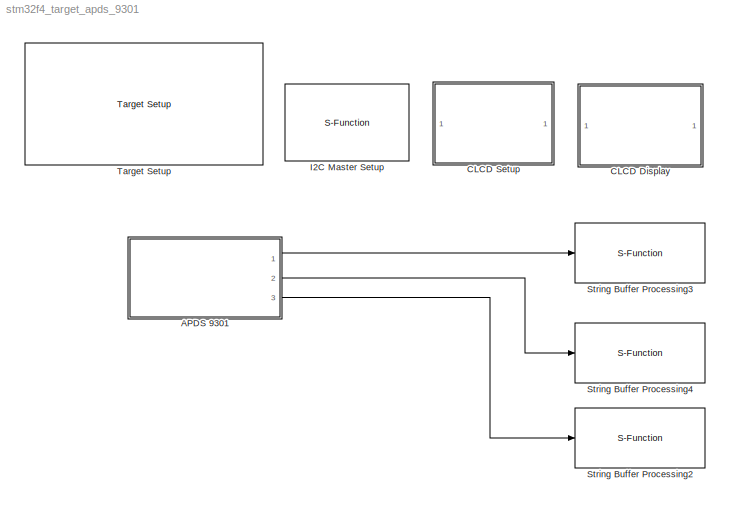
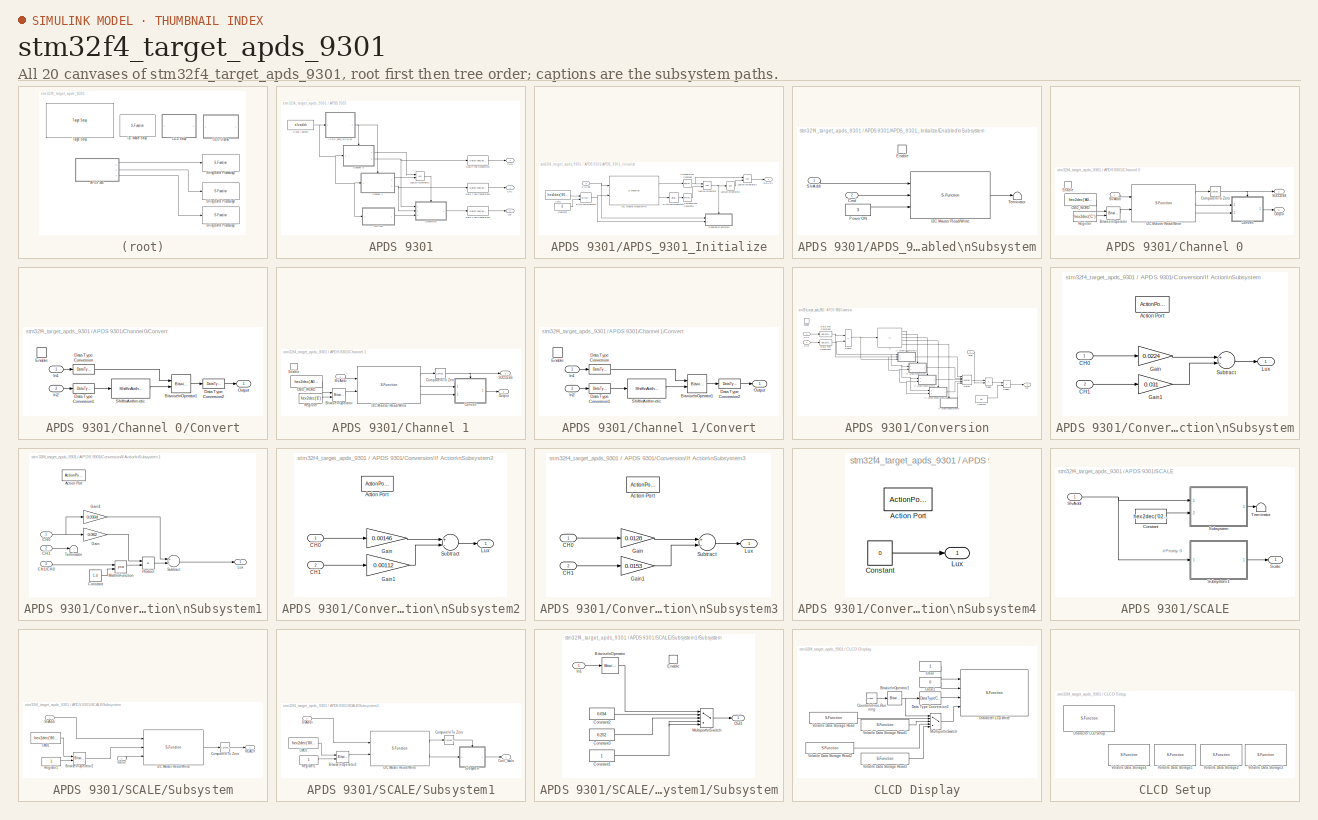
[diagram: thumbnail index - all 20 canvases of the model, root first then tree order]
MODEL stm32f4_target_apds_9301
KIND model
CONFIG PreLoadFcn = waijung.modelPreload; % Required for working with Waijung Blockset. Do not remove.
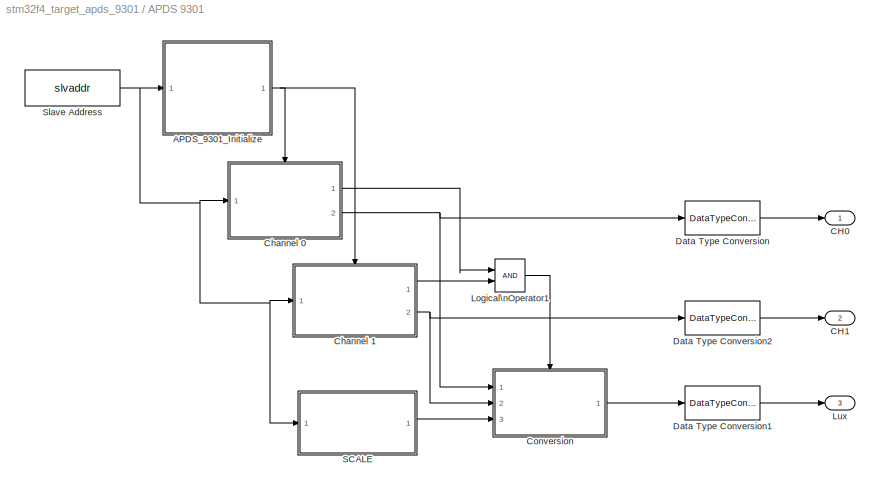
BLOCK [SubSystem] APDS 9301
  FunctionWithSeparateData = off
  MaskCallbackString = stm32f4_i2c_sensors_callback('module');||||
  MaskDescription = aMG Sense - Light\n\nNote: Require I2C Setup block for the selected I2C module.
  MaskDisplay = text(0.5, 0.5, 'aMG Sense - Light','ver','middle','hor','center');port_label('output', 1,'CH0');port_label('output', 2,'CH1');port_label('output', 3,'Lux');
  MaskEnableString = on,on,on,on,on
  MaskHideContents = off
  MaskIconFrame = on
  MaskIconOpaque = on
  MaskIconRotate = none
  MaskIconUnits = normalized
  MaskInitialization = stm32f4_i2c_sensors_callback('init');
  MaskPortRotate = default
  MaskPromptString = I2C Module|I2C Slave Address|Output label|Sensor name|Sample time (sec)
  MaskSelfModifiable = on
  MaskStyleString = popup(1|2|3),edit,edit,edit,edit
  MaskTabNameString = ,,,,
  MaskToolTipString = on,on,on,on,on
  MaskTunableValueString = off,on,off,off,on
  MaskType = stm32f4_i2c_sensors
  MaskValueString = 1|hex2dec('72')|{'CH0','CH1','Lux'}|aMG Sense - Light|0.5
  MaskVarAliasString = ,,,,
  MaskVariables = module=&1;slvaddr=@2;outputlabel=&3;sensorname=&4;sampletime=@5;
  MaskVisibilityString = on,on,off,off,on
  MinAlgLoopOccurrences = off
  Opaque = off
  Ports = [0, 3]
  PropExecContextOutsideSubsystem = off
  RTWSystemCode = Auto
  RequestExecContextInheritance = off
BLOCK [SubSystem] APDS 9301/APDS_9301_Initialize
  FunctionWithSeparateData = off
  MaskHideContents = off
  MinAlgLoopOccurrences = off
  Opaque = off
  Ports = [1, 1]
  PropExecContextOutsideSubsystem = off
  RTWSystemCode = Auto
  RequestExecContextInheritance = off
BLOCK [Reference] APDS 9301/APDS_9301_Initialize/Bitwise\nOperator  REF=simulink/Logic and Bit\nOperations/Bitwise\nOperator
  BitMask = bin2dec('11011001')
  BitMaskRealWorld = Stored Integer
  NumInputPorts = 2
  Ports = [2, 1]
  SourceBlock = simulink/Logic and Bit\nOperations/Bitwise\nOperator
  SourceType = Bitwise Operator
  UseBitMask = off
  logicop = OR
BLOCK [Reference] APDS 9301/APDS_9301_Initialize/Bitwise\nOperator1  REF=simulink/Logic and Bit\nOperations/Bitwise\nOperator
  BitMask = 3
  BitMaskRealWorld = Stored Integer
  NumInputPorts = 1
  Ports = [1, 1]
  SourceBlock = simulink/Logic and Bit\nOperations/Bitwise\nOperator
  SourceType = Bitwise Operator
  UseBitMask = on
  logicop = AND
BLOCK [Constant] APDS 9301/APDS_9301_Initialize/CMD
  OutDataType = fixdt(1, 16)
  OutDataTypeMode = uint8
  OutDataTypeStr = uint8
  OutScaling = 2^0
  Value = hex2dec('80')
BLOCK [Reference] APDS 9301/APDS_9301_Initialize/Compare\nTo Constant  REF=simulink/Logic and Bit\nOperations/Compare\nTo Constant
  FunctionWithSeparateData = off
  LogicOutDataTypeMode = uint8
  Ports = [1, 1]
  RTWMemSecDataConstants = Inherit from model
  RTWMemSecDataInternal = Inherit from model
  RTWMemSecDataParameters = Inherit from model
  RTWMemSecFuncExecute = Inherit from model
  RTWMemSecFuncInitTerm = Inherit from model
  ShowPortLabels = FromPortIcon
  SourceBlock = simulink/Logic and Bit\nOperations/Compare\nTo Constant
  SourceType = Compare To Constant
  SystemSampleTime = -1
  ZeroCross = off
  const = 0
  relop = ==
BLOCK [Reference] APDS 9301/APDS_9301_Initialize/Compare\nTo Constant1  REF=simulink/Logic and Bit\nOperations/Compare\nTo Constant
  FunctionWithSeparateData = off
  LogicOutDataTypeMode = uint8
  Ports = [1, 1]
  RTWMemSecDataConstants = Inherit from model
  RTWMemSecDataInternal = Inherit from model
  RTWMemSecDataParameters = Inherit from model
  RTWMemSecFuncExecute = Inherit from model
  RTWMemSecFuncInitTerm = Inherit from model
  ShowPortLabels = FromPortIcon
  SourceBlock = simulink/Logic and Bit\nOperations/Compare\nTo Constant
  SourceType = Compare To Constant
  SystemSampleTime = -1
  ZeroCross = off
  const = 3
  relop = ~=
BLOCK [SubSystem] APDS 9301/APDS_9301_Initialize/Enabled\nSubsystem
  FunctionWithSeparateData = off
  MaskHideContents = off
  MinAlgLoopOccurrences = off
  Opaque = off
  Ports = [2, 0, 1]
  PropExecContextOutsideSubsystem = off
  RTWSystemCode = Auto
  RequestExecContextInheritance = off
  TreatAsAtomicUnit = on
BLOCK [Inport] APDS 9301/APDS_9301_Initialize/Enabled\nSubsystem/Cmd
  IconDisplay = Port number
  OutDataType = fixdt(1, 16)
  OutScaling = 2^0
  Port = 2
BLOCK [EnablePort] APDS 9301/APDS_9301_Initialize/Enabled\nSubsystem/Enable
  Ports = []
BLOCK [S-Function] APDS 9301/APDS_9301_Initialize/Enabled\nSubsystem/I2C Master Read//Write
  EnableBusSupport = off
  FunctionName = stm32f4_i2c
  MaskCallbackString = stm32f4_i2c_callback('configuration');|stm32f4_i2c_callback('module');|||stm32f4_i2c_callback('dutycycle');|||stm32f4_i2c_callback('writecount');|stm32f4_i2c_callback('readcount');|stm32f4_i2c_callback('sdapin');|stm32f4_i2c_callback('sclpin');||||stm32f4_i2c_callback('confstr');|stm32f4_i2c_callback('sampletime');|stm32f4_i2c_callback('sampletimestr');|stm32f4_i2c_callback('blockid');  <repeated x7 — deduplicated; at blocks: I2C Master Read/Write, I2C Master Setup>
  MaskDisplay = text(0.5, 0.5, 'Module: I2C1\\nTransfer: Blocking\\nWrite: 2 bytes\\nRead: 0 bytes\\nTs (sec): 0.5','ver','middle','hor','center');port_label('input', 1,'SlvAddr');port_label('input', 2,'Wr0 (uint8)');port_label('input', 3,'Wr1 (uint8)');port_label('output', 1,'Status');
  MaskEnableString = off,on,off,off,on,on,on,on,on,on,on,on,off,off,off,on,on,on
  MaskHelp = web(fullfile(waijungdocroot,'stm32f4_i2c_readwrite.htm'), '-browser')
  MaskIconFrame = on
  MaskIconOpaque = on
  MaskIconRotate = none
  MaskIconUnits = normalized
  MaskInitialization = stm32f4_i2c_callback('init');
  MaskPortRotate = default
  MaskPromptString = Configuration|I2C Module|Last module|Transfer mode|Duty cycle in fast mode|Clock speed (kHz)|Timeout (ms)|Bytes write count|Bytes read count|SDA pin|SCL pin|Wait write time (ms), default is 0|Input type array|Output type array|Configuration string|Sample time (sec)|Compiled sample time (sec) in string|BlockID  <repeated x7 — deduplicated; at blocks: I2C Master Read/Write, I2C Master Setup>
  MaskSelfModifiable = on
  MaskStyleString = popup(Setup|Transaction),popup(1|2|3),edit,popup(Blocking|Non-blocking),popup(TLow/THigh = 16/9|TLow/THigh = 2),edit,edit,edit,edit,popup(-|C9),popup(-|A8),edit,edit,edit,edit,edit,edit,edit  <repeated x6 — deduplicated; at blocks: I2C Master Read/Write>
  MaskTabNameString = ,,,,,,,,,,,,,,,,,
  MaskToolTipString = on,on,on,on,on,on,on,on,on,on,on,on,on,on,on,on,on,on
  MaskTunableValueString = off,off,off,off,off,off,off,off,off,off,off,off,off,off,off,off,off,off
  MaskType = stm32f4_i2c
  MaskValueString = Transaction|1|3|Blocking|TLow/THigh = 2|400|25|2|0|C9|A8|0|[3 3 3 3]|[1 3]|[\"C\",\"9\",\"A\",\"8\",\"1\",\"1\",\"6\",\"0\",\"I2C_DutyCycle_2\",\"0\",\"off\"]|-1|0.5|APDS9301APDS_9301_InitializeEnabledSubsystemI2CMasterReadWrite
  MaskVarAliasString = ,,,,,,,,,,,,,,,,,
  MaskVariables = configuration=&1;module=&2;lastmodule=&3;transfer=&4;dutycycle=&5;clkspeed=@6;timeout=@7;writecount=@8;readcount=@9;sdapin=&10;sclpin=&11;waitwritetime=@12;inputtypearray=@13;outputtypearray=@14;confstr=&15;sampletime=@16;sampletimestr=&17;blockid=&18;  <repeated x7 — deduplicated; at blocks: I2C Master Read/Write, I2C Master Setup>
  MaskVisibilityString = off,on,off,off,off,off,off,on,on,off,off,on,off,off,off,on,off,off
  Parameters = configuration,module,transfer,clkspeed,timeout,sdapin,sclpin,writecount,readcount,inputtypearray,outputtypearray,confstr,sampletime,sampletimestr,blockid
  Ports = [3, 1]
BLOCK [Constant] APDS 9301/APDS_9301_Initialize/Enabled\nSubsystem/Power ON
  OutDataType = fixdt(1, 16)
  OutDataTypeMode = uint8
  OutDataTypeStr = uint8
  OutScaling = 2^0
  Value = 3
BLOCK [Inport] APDS 9301/APDS_9301_Initialize/Enabled\nSubsystem/SlvAddr
  IconDisplay = Port number
  OutDataType = fixdt(1, 16)
  OutScaling = 2^0
BLOCK [Terminator] APDS 9301/APDS_9301_Initialize/Enabled\nSubsystem/Terminator
BLOCK [S-Function] APDS 9301/APDS_9301_Initialize/I2C Master Read//Write
  EnableBusSupport = off
  FunctionName = stm32f4_i2c
  MaskDisplay = text(0.5, 0.5, 'Module: I2C1\\nTransfer: Blocking\\nWrite: 1 bytes\\nRead: 1 bytes\\nTs (sec): 0.5','ver','middle','hor','center');port_label('input', 1,'SlvAddr');port_label('input', 2,'Wr0 (uint8)');port_label('output', 1,'Status');port_label('output', 2,'Rd0 (uint8)');
  MaskEnableString = off,on,off,off,on,on,on,on,on,on,on,on,off,off,off,on,on,on
  MaskHelp = web(fullfile(waijungdocroot,'stm32f4_i2c_readwrite.htm'), '-browser')
  MaskIconFrame = on
  MaskIconOpaque = on
  MaskIconRotate = none
  MaskIconUnits = normalized
  MaskInitialization = stm32f4_i2c_callback('init');
  MaskPortRotate = default
  MaskSelfModifiable = on
  MaskTabNameString = ,,,,,,,,,,,,,,,,,
  MaskToolTipString = on,on,on,on,on,on,on,on,on,on,on,on,on,on,on,on,on,on
  MaskTunableValueString = off,off,off,off,off,off,off,off,off,off,off,off,off,off,off,off,off,off
  MaskType = stm32f4_i2c
  MaskValueString = Transaction|1|3|Blocking|TLow/THigh = 2|400|25|1|1|C9|A8|0|[2 3 3]|[2 3 3]|[\"C\",\"9\",\"A\",\"8\",\"1\",\"1\",\"6\",\"0\",\"I2C_DutyCycle_2\",\"0\",\"off\"]|-1|0.5|APDS9301APDS_9301_InitializeI2CMasterReadWrite
  MaskVarAliasString = ,,,,,,,,,,,,,,,,,
  MaskVisibilityString = off,on,off,off,off,off,off,on,on,off,off,on,off,off,off,on,off,off
  Parameters = configuration,module,transfer,clkspeed,timeout,sdapin,sclpin,writecount,readcount,inputtypearray,outputtypearray,confstr,sampletime,sampletimestr,blockid
  Ports = [2, 2]
BLOCK [Logic] APDS 9301/APDS_9301_Initialize/Logical\nOperator
  AllPortsSameDT = off
  LogicDataType = fixdt(0, 8)
  OutDataTypeMode = boolean
  OutDataTypeStr = boolean
  Ports = [2, 1]
BLOCK [Logic] APDS 9301/APDS_9301_Initialize/Logical\nOperator1
  AllPortsSameDT = off
  LogicDataType = fixdt(0, 8)
  OutDataTypeMode = boolean
  OutDataTypeStr = boolean
  Ports = [2, 1]
BLOCK [Logic] APDS 9301/APDS_9301_Initialize/Logical\nOperator2
  AllPortsSameDT = off
  LogicDataType = fixdt(0, 8)
  Operator = NOT
  OutDataTypeMode = boolean
  OutDataTypeStr = boolean
  Ports = [1, 1]
BLOCK [Outport] APDS 9301/APDS_9301_Initialize/READY
  IconDisplay = Port number
  OutDataType = fixdt(1, 16)
  OutScaling = 2^0
BLOCK [Constant] APDS 9301/APDS_9301_Initialize/Register
  OutDataType = fixdt(1, 16)
  OutDataTypeMode = uint8
  OutDataTypeStr = uint8
  OutScaling = 2^0
  Value = 0
BLOCK [Inport] APDS 9301/APDS_9301_Initialize/SlvAddr
  IconDisplay = Port number
  OutDataType = fixdt(1, 16)
  OutScaling = 2^0
BLOCK [Outport] APDS 9301/CH0
  IconDisplay = Port number
  OutDataType = fixdt(1, 16)
  OutScaling = 2^0
BLOCK [Outport] APDS 9301/CH1
  IconDisplay = Port number
  OutDataType = fixdt(1, 16)
  OutScaling = 2^0
  Port = 2
BLOCK [SubSystem] APDS 9301/Channel 0
  FunctionWithSeparateData = off
  MaskHideContents = off
  MinAlgLoopOccurrences = off
  Opaque = off
  Ports = [1, 2, 1]
  PropExecContextOutsideSubsystem = off
  RTWSystemCode = Auto
  RequestExecContextInheritance = off
BLOCK [Reference] APDS 9301/Channel 0/Bitwise\nOperator  REF=simulink/Logic and Bit\nOperations/Bitwise\nOperator
  BitMask = bin2dec('11011001')
  BitMaskRealWorld = Stored Integer
  NumInputPorts = 2
  Ports = [2, 1]
  SourceBlock = simulink/Logic and Bit\nOperations/Bitwise\nOperator
  SourceType = Bitwise Operator
  UseBitMask = off
  logicop = OR
BLOCK [Constant] APDS 9301/Channel 0/CMD_WORD
  OutDataType = fixdt(1, 16)
  OutDataTypeMode = uint8
  OutDataTypeStr = uint8
  OutScaling = 2^0
  Value = hex2dec('A0')
BLOCK [Reference] APDS 9301/Channel 0/Compare\nTo Zero  REF=simulink/Logic and Bit\nOperations/Compare\nTo Zero
  FunctionWithSeparateData = off
  LogicOutDataTypeMode = uint8
  Ports = [1, 1]
  RTWMemSecDataConstants = Inherit from model
  RTWMemSecDataInternal = Inherit from model
  RTWMemSecDataParameters = Inherit from model
  RTWMemSecFuncExecute = Inherit from model
  RTWMemSecFuncInitTerm = Inherit from model
  ShowPortLabels = FromPortIcon
  SourceBlock = simulink/Logic and Bit\nOperations/Compare\nTo Zero
  SourceType = Compare To Zero
  SystemSampleTime = -1
  ZeroCross = off
  relop = ==
BLOCK [SubSystem] APDS 9301/Channel 0/Convert
  FunctionWithSeparateData = off
  MaskHideContents = off
  MinAlgLoopOccurrences = off
  Opaque = off
  Ports = [2, 1, 1]
  PropExecContextOutsideSubsystem = off
  RTWSystemCode = Auto
  RequestExecContextInheritance = off
BLOCK [Reference] APDS 9301/Channel 0/Convert/Bitwise\nOperator1  REF=simulink/Logic and Bit\nOperations/Bitwise\nOperator
  BitMask = bin2dec('11011001')
  BitMaskRealWorld = Stored Integer
  NumInputPorts = 2
  Ports = [2, 1]
  SourceBlock = simulink/Logic and Bit\nOperations/Bitwise\nOperator
  SourceType = Bitwise Operator
  UseBitMask = off
  logicop = OR
BLOCK [DataTypeConversion] APDS 9301/Channel 0/Convert/Data Type Conversion
  OutDataType = fixdt(1, 16)
  OutDataTypeMode = uint16
  OutDataTypeStr = uint16
  OutScaling = 2^0
  RndMeth = Floor
  SaturateOnIntegerOverflow = off
BLOCK [DataTypeConversion] APDS 9301/Channel 0/Convert/Data Type Conversion1
  OutDataType = fixdt(1, 16)
  OutDataTypeMode = uint16
  OutDataTypeStr = uint16
  OutScaling = 2^0
  RndMeth = Floor
  SaturateOnIntegerOverflow = off
BLOCK [DataTypeConversion] APDS 9301/Channel 0/Convert/Data Type Conversion2
  OutDataType = fixdt(1, 16)
  OutDataTypeMode = uint16
  OutDataTypeStr = uint16
  OutScaling = 2^0
  RndMeth = Floor
  SaturateOnIntegerOverflow = off
BLOCK [EnablePort] APDS 9301/Channel 0/Convert/Enable
  Ports = []
BLOCK [Inport] APDS 9301/Channel 0/Convert/In1
  IconDisplay = Port number
BLOCK [Inport] APDS 9301/Channel 0/Convert/In2
  IconDisplay = Port number
  Port = 2
BLOCK [Outport] APDS 9301/Channel 0/Convert/Output
  IconDisplay = Port number
BLOCK [Reference] APDS 9301/Channel 0/Convert/Shift\nArithmetic  REF=simulink/Logic and Bit\nOperations/Shift\nArithmetic
  FunctionWithSeparateData = off
  Ports = [1, 1]
  RTWMemSecDataConstants = Inherit from model
  RTWMemSecDataInternal = Inherit from model
  RTWMemSecDataParameters = Inherit from model
  RTWMemSecFuncExecute = Inherit from model
  RTWMemSecFuncInitTerm = Inherit from model
  ShowPortLabels = FromPortIcon
  SourceBlock = simulink/Logic and Bit\nOperations/Shift\nArithmetic
  SourceType = Shift Arithmetic
  SystemSampleTime = -1
  nBinPtShiftRight = 0
  nBitShiftRight = -8
BLOCK [EnablePort] APDS 9301/Channel 0/Enable
  Ports = []
BLOCK [S-Function] APDS 9301/Channel 0/I2C Master Read//Write
  EnableBusSupport = off
  FunctionName = stm32f4_i2c
  MaskDisplay = text(0.5, 0.5, 'Module: I2C1\\nTransfer: Blocking\\nWrite: 1 bytes\\nRead: 2 bytes\\nTs (sec): 0.5','ver','middle','hor','center');port_label('input', 1,'SlvAddr');port_label('input', 2,'Wr0 (uint8)');port_label('output', 1,'Status');port_label('output', 2,'Rd0 (uint8)');port_label('output', 3,'Rd1 (uint8)');
  MaskEnableString = off,on,off,off,on,on,on,on,on,on,on,on,off,off,off,on,on,on
  MaskHelp = web(fullfile(waijungdocroot,'stm32f4_i2c_readwrite.htm'), '-browser')
  MaskIconFrame = on
  MaskIconOpaque = on
  MaskIconRotate = none
  MaskIconUnits = normalized
  MaskInitialization = stm32f4_i2c_callback('init');
  MaskPortRotate = default
  MaskSelfModifiable = on
  MaskTabNameString = ,,,,,,,,,,,,,,,,,
  MaskToolTipString = on,on,on,on,on,on,on,on,on,on,on,on,on,on,on,on,on,on
  MaskTunableValueString = off,off,off,off,off,off,off,off,off,off,off,off,off,off,off,off,off,off
  MaskType = stm32f4_i2c
  MaskValueString = Transaction|1|3|Blocking|TLow/THigh = 2|400|25|1|2|C9|A8|0|[2 3 3]|[3 3 3 3]|[\"C\",\"9\",\"A\",\"8\",\"1\",\"1\",\"6\",\"0\",\"I2C_DutyCycle_2\",\"0\",\"off\"]|-1|0.5|APDS9301Channel0I2CMasterReadWrite
  MaskVarAliasString = ,,,,,,,,,,,,,,,,,
  MaskVisibilityString = off,on,off,off,off,off,off,on,on,off,off,on,off,off,off,on,off,off
  Parameters = configuration,module,transfer,clkspeed,timeout,sdapin,sclpin,writecount,readcount,inputtypearray,outputtypearray,confstr,sampletime,sampletimestr,blockid
  Ports = [2, 3]
BLOCK [Outport] APDS 9301/Channel 0/Output
  IconDisplay = Port number
  OutDataType = fixdt(1, 16)
  OutScaling = 2^0
  Port = 2
BLOCK [Constant] APDS 9301/Channel 0/Register
  OutDataType = fixdt(1, 16)
  OutDataTypeMode = uint8
  OutDataTypeStr = uint8
  OutScaling = 2^0
  Value = hex2dec('C')
BLOCK [Outport] APDS 9301/Channel 0/SUCCESS
  IconDisplay = Port number
  OutDataType = fixdt(1, 16)
  OutScaling = 2^0
BLOCK [Inport] APDS 9301/Channel 0/SlvAddr
  IconDisplay = Port number
  OutDataType = fixdt(1, 16)
  OutScaling = 2^0
BLOCK [SubSystem] APDS 9301/Channel 1
  FunctionWithSeparateData = off
  MaskHideContents = off
  MinAlgLoopOccurrences = off
  Opaque = off
  Ports = [1, 2, 1]
  PropExecContextOutsideSubsystem = off
  RTWSystemCode = Auto
  RequestExecContextInheritance = off
BLOCK [Reference] APDS 9301/Channel 1/Bitwise\nOperator  REF=simulink/Logic and Bit\nOperations/Bitwise\nOperator
  BitMask = bin2dec('11011001')
  BitMaskRealWorld = Stored Integer
  NumInputPorts = 2
  Ports = [2, 1]
  SourceBlock = simulink/Logic and Bit\nOperations/Bitwise\nOperator
  SourceType = Bitwise Operator
  UseBitMask = off
  logicop = OR
BLOCK [Constant] APDS 9301/Channel 1/CMD_WORD
  OutDataType = fixdt(1, 16)
  OutDataTypeMode = uint8
  OutDataTypeStr = uint8
  OutScaling = 2^0
  Value = hex2dec('A0')
BLOCK [Reference] APDS 9301/Channel 1/Compare\nTo Zero  REF=simulink/Logic and Bit\nOperations/Compare\nTo Zero
  FunctionWithSeparateData = off
  LogicOutDataTypeMode = uint8
  Ports = [1, 1]
  RTWMemSecDataConstants = Inherit from model
  RTWMemSecDataInternal = Inherit from model
  RTWMemSecDataParameters = Inherit from model
  RTWMemSecFuncExecute = Inherit from model
  RTWMemSecFuncInitTerm = Inherit from model
  ShowPortLabels = FromPortIcon
  SourceBlock = simulink/Logic and Bit\nOperations/Compare\nTo Zero
  SourceType = Compare To Zero
  SystemSampleTime = -1
  ZeroCross = off
  relop = ==
BLOCK [SubSystem] APDS 9301/Channel 1/Convert
  FunctionWithSeparateData = off
  MaskHideContents = off
  MinAlgLoopOccurrences = off
  Opaque = off
  Ports = [2, 1, 1]
  PropExecContextOutsideSubsystem = off
  RTWSystemCode = Auto
  RequestExecContextInheritance = off
BLOCK [Reference] APDS 9301/Channel 1/Convert/Bitwise\nOperator1  REF=simulink/Logic and Bit\nOperations/Bitwise\nOperator
  BitMask = bin2dec('11011001')
  BitMaskRealWorld = Stored Integer
  NumInputPorts = 2
  Ports = [2, 1]
  SourceBlock = simulink/Logic and Bit\nOperations/Bitwise\nOperator
  SourceType = Bitwise Operator
  UseBitMask = off
  logicop = OR
BLOCK [DataTypeConversion] APDS 9301/Channel 1/Convert/Data Type Conversion
  OutDataType = fixdt(1, 16)
  OutDataTypeMode = uint16
  OutDataTypeStr = uint16
  OutScaling = 2^0
  RndMeth = Floor
  SaturateOnIntegerOverflow = off
BLOCK [DataTypeConversion] APDS 9301/Channel 1/Convert/Data Type Conversion1
  OutDataType = fixdt(1, 16)
  OutDataTypeMode = uint16
  OutDataTypeStr = uint16
  OutScaling = 2^0
  RndMeth = Floor
  SaturateOnIntegerOverflow = off
BLOCK [DataTypeConversion] APDS 9301/Channel 1/Convert/Data Type Conversion2
  OutDataType = fixdt(1, 16)
  OutDataTypeMode = uint16
  OutDataTypeStr = uint16
  OutScaling = 2^0
  RndMeth = Floor
  SaturateOnIntegerOverflow = off
BLOCK [EnablePort] APDS 9301/Channel 1/Convert/Enable
  Ports = []
BLOCK [Inport] APDS 9301/Channel 1/Convert/In1
  IconDisplay = Port number
BLOCK [Inport] APDS 9301/Channel 1/Convert/In2
  IconDisplay = Port number
  Port = 2
BLOCK [Outport] APDS 9301/Channel 1/Convert/Output
  IconDisplay = Port number
BLOCK [Reference] APDS 9301/Channel 1/Convert/Shift\nArithmetic  REF=simulink/Logic and Bit\nOperations/Shift\nArithmetic
  FunctionWithSeparateData = off
  Ports = [1, 1]
  RTWMemSecDataConstants = Inherit from model
  RTWMemSecDataInternal = Inherit from model
  RTWMemSecDataParameters = Inherit from model
  RTWMemSecFuncExecute = Inherit from model
  RTWMemSecFuncInitTerm = Inherit from model
  ShowPortLabels = FromPortIcon
  SourceBlock = simulink/Logic and Bit\nOperations/Shift\nArithmetic
  SourceType = Shift Arithmetic
  SystemSampleTime = -1
  nBinPtShiftRight = 0
  nBitShiftRight = -8
BLOCK [EnablePort] APDS 9301/Channel 1/Enable
  Ports = []
BLOCK [S-Function] APDS 9301/Channel 1/I2C Master Read//Write
  EnableBusSupport = off
  FunctionName = stm32f4_i2c
  MaskDisplay = text(0.5, 0.5, 'Module: I2C1\\nTransfer: Blocking\\nWrite: 1 bytes\\nRead: 2 bytes\\nTs (sec): 0.5','ver','middle','hor','center');port_label('input', 1,'SlvAddr');port_label('input', 2,'Wr0 (uint8)');port_label('output', 1,'Status');port_label('output', 2,'Rd0 (uint8)');port_label('output', 3,'Rd1 (uint8)');
  MaskEnableString = off,on,off,off,on,on,on,on,on,on,on,on,off,off,off,on,on,on
  MaskHelp = web(fullfile(waijungdocroot,'stm32f4_i2c_readwrite.htm'), '-browser')
  MaskIconFrame = on
  MaskIconOpaque = on
  MaskIconRotate = none
  MaskIconUnits = normalized
  MaskInitialization = stm32f4_i2c_callback('init');
  MaskPortRotate = default
  MaskSelfModifiable = on
  MaskTabNameString = ,,,,,,,,,,,,,,,,,
  MaskToolTipString = on,on,on,on,on,on,on,on,on,on,on,on,on,on,on,on,on,on
  MaskTunableValueString = off,off,off,off,off,off,off,off,off,off,off,off,off,off,off,off,off,off
  MaskType = stm32f4_i2c
  MaskValueString = Transaction|1|3|Blocking|TLow/THigh = 2|400|25|1|2|C9|A8|0|[2 3 3]|[3 3 3 3]|[\"C\",\"9\",\"A\",\"8\",\"1\",\"1\",\"6\",\"0\",\"I2C_DutyCycle_2\",\"0\",\"off\"]|-1|0.5|APDS9301Channel1I2CMasterReadWrite
  MaskVarAliasString = ,,,,,,,,,,,,,,,,,
  MaskVisibilityString = off,on,off,off,off,off,off,on,on,off,off,on,off,off,off,on,off,off
  Parameters = configuration,module,transfer,clkspeed,timeout,sdapin,sclpin,writecount,readcount,inputtypearray,outputtypearray,confstr,sampletime,sampletimestr,blockid
  Ports = [2, 3]
BLOCK [Outport] APDS 9301/Channel 1/Output
  IconDisplay = Port number
  OutDataType = fixdt(1, 16)
  OutScaling = 2^0
  Port = 2
BLOCK [Constant] APDS 9301/Channel 1/Register
  OutDataType = fixdt(1, 16)
  OutDataTypeMode = uint8
  OutDataTypeStr = uint8
  OutScaling = 2^0
  Value = hex2dec('E')
BLOCK [Outport] APDS 9301/Channel 1/SUCCESS
  IconDisplay = Port number
  OutDataType = fixdt(1, 16)
  OutScaling = 2^0
BLOCK [Inport] APDS 9301/Channel 1/SlvAddr
  IconDisplay = Port number
  OutDataType = fixdt(1, 16)
  OutScaling = 2^0
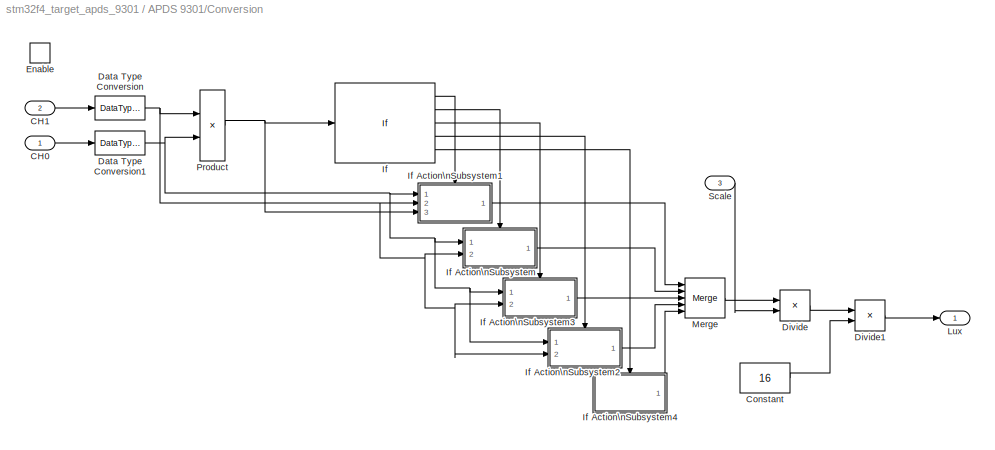
BLOCK [SubSystem] APDS 9301/Conversion
  FunctionWithSeparateData = off
  MaskHideContents = off
  MinAlgLoopOccurrences = off
  Opaque = off
  Ports = [3, 1, 1]
  PropExecContextOutsideSubsystem = off
  RTWSystemCode = Auto
  RequestExecContextInheritance = off
BLOCK [Inport] APDS 9301/Conversion/CH0
  IconDisplay = Port number
  OutDataType = fixdt(1, 16)
  OutScaling = 2^0
BLOCK [Inport] APDS 9301/Conversion/CH1
  IconDisplay = Port number
  OutDataType = fixdt(1, 16)
  OutScaling = 2^0
  Port = 2
BLOCK [Constant] APDS 9301/Conversion/Constant
  OutDataType = fixdt(1, 16)
  OutScaling = 2^0
  Value = 16
BLOCK [DataTypeConversion] APDS 9301/Conversion/Data Type Conversion
  OutDataType = fixdt(1, 16)
  OutScaling = 2^0
  RndMeth = Floor
  SaturateOnIntegerOverflow = off
BLOCK [DataTypeConversion] APDS 9301/Conversion/Data Type Conversion1
  OutDataType = fixdt(1, 16)
  OutScaling = 2^0
  RndMeth = Floor
  SaturateOnIntegerOverflow = off
BLOCK [Product] APDS 9301/Conversion/Divide
  InputSameDT = off
  Inputs = */
  OutDataType = fixdt(1, 16)
  OutDataTypeMode = Inherit via internal rule
  OutDataTypeStr = Inherit: Inherit via internal rule
  OutScaling = 2^-10
  Ports = [2, 1]
  RndMeth = Floor
  SaturateOnIntegerOverflow = off
BLOCK [Product] APDS 9301/Conversion/Divide1
  InputSameDT = off
  Inputs = **
  OutDataType = fixdt(1, 16)
  OutDataTypeMode = Inherit via internal rule
  OutDataTypeStr = Inherit: Inherit via internal rule
  OutScaling = 2^-10
  Ports = [2, 1]
  RndMeth = Floor
  SaturateOnIntegerOverflow = off
BLOCK [EnablePort] APDS 9301/Conversion/Enable
  Ports = []
BLOCK [If] APDS 9301/Conversion/If
  ElseIfExpressions = (u1 > 0.5) & (u1<=0.61),(u1 > 0.61) & (u1<=0.8),(u1 > 0.8) & (u1<=1.3)
  IfExpression = (u1 > 0) & (u1<=0.5)
  Ports = [1, 5]
BLOCK [SubSystem] APDS 9301/Conversion/If Action\nSubsystem
  FunctionWithSeparateData = off
  MaskHideContents = off
  MinAlgLoopOccurrences = off
  Opaque = off
  Ports = [2, 1, 0, 0, 0, 0, 0, 1]
  PropExecContextOutsideSubsystem = off
  RTWSystemCode = Auto
  RequestExecContextInheritance = off
  TreatAsAtomicUnit = on
BLOCK [ActionPort] APDS 9301/Conversion/If Action\nSubsystem/Action Port
  ActionType = elseif
BLOCK [Inport] APDS 9301/Conversion/If Action\nSubsystem/CH0
  IconDisplay = Port number
  OutDataType = fixdt(1, 16)
  OutScaling = 2^0
BLOCK [Inport] APDS 9301/Conversion/If Action\nSubsystem/CH1
  IconDisplay = Port number
  OutDataType = fixdt(1, 16)
  OutScaling = 2^0
  Port = 2
BLOCK [Gain] APDS 9301/Conversion/If Action\nSubsystem/Gain
  Gain = 0.0224
  OutDataType = fixdt(1, 16)
  OutDataTypeMode = Inherit via internal rule
  OutDataTypeStr = Inherit: Inherit via internal rule
  OutScaling = 2^0
  ParamDataTypeStr = Inherit: Inherit via internal rule
  ParameterDataType = fixdt(1, 16)
  ParameterDataTypeMode = Inherit via internal rule
  ParameterScaling = 2^0
  SaturateOnIntegerOverflow = off
BLOCK [Gain] APDS 9301/Conversion/If Action\nSubsystem/Gain1
  Gain = 0.031
  OutDataType = fixdt(1, 16)
  OutDataTypeMode = Inherit via internal rule
  OutDataTypeStr = Inherit: Inherit via internal rule
  OutScaling = 2^0
  ParamDataTypeStr = Inherit: Inherit via internal rule
  ParameterDataType = fixdt(1, 16)
  ParameterDataTypeMode = Inherit via internal rule
  ParameterScaling = 2^0
  SaturateOnIntegerOverflow = off
BLOCK [Outport] APDS 9301/Conversion/If Action\nSubsystem/Lux
  IconDisplay = Port number
  OutDataType = fixdt(1, 16)
  OutScaling = 2^0
BLOCK [Sum] APDS 9301/Conversion/If Action\nSubsystem/Subtract
  InputSameDT = off
  Inputs = +-
  OutDataType = fixdt(1, 16)
  OutDataTypeMode = Inherit via internal rule
  OutDataTypeStr = Inherit: Inherit via internal rule
  OutScaling = 2^-10
  Ports = [2, 1]
  SaturateOnIntegerOverflow = off
BLOCK [SubSystem] APDS 9301/Conversion/If Action\nSubsystem1
  FunctionWithSeparateData = off
  MaskHideContents = off
  MinAlgLoopOccurrences = off
  Opaque = off
  Ports = [3, 1, 0, 0, 0, 0, 0, 1]
  PropExecContextOutsideSubsystem = off
  RTWSystemCode = Auto
  RequestExecContextInheritance = off
  TreatAsAtomicUnit = on
BLOCK [ActionPort] APDS 9301/Conversion/If Action\nSubsystem1/Action Port
  ActionType = then
BLOCK [Inport] APDS 9301/Conversion/If Action\nSubsystem1/CH0
  IconDisplay = Port number
  OutDataType = fixdt(1, 16)
  OutScaling = 2^0
BLOCK [Inport] APDS 9301/Conversion/If Action\nSubsystem1/CH1
  IconDisplay = Port number
  OutDataType = fixdt(1, 16)
  OutScaling = 2^0
  Port = 2
BLOCK [Inport] APDS 9301/Conversion/If Action\nSubsystem1/CH1//CH0
  IconDisplay = Port number
  OutDataType = fixdt(1, 16)
  OutScaling = 2^0
  Port = 3
BLOCK [Constant] APDS 9301/Conversion/If Action\nSubsystem1/Constant
  OutDataType = fixdt(1, 16)
  OutScaling = 2^0
  Value = 1.4
BLOCK [Gain] APDS 9301/Conversion/If Action\nSubsystem1/Gain
  Gain = 0.062
  OutDataType = fixdt(1, 16)
  OutDataTypeMode = Inherit via internal rule
  OutDataTypeStr = Inherit: Inherit via internal rule
  OutScaling = 2^0
  ParamDataTypeStr = Inherit: Inherit via internal rule
  ParameterDataType = fixdt(1, 16)
  ParameterDataTypeMode = Inherit via internal rule
  ParameterScaling = 2^0
  SaturateOnIntegerOverflow = off
BLOCK [Gain] APDS 9301/Conversion/If Action\nSubsystem1/Gain1
  Gain = 0.0304
  OutDataType = fixdt(1, 16)
  OutDataTypeMode = Inherit via internal rule
  OutDataTypeStr = Inherit: Inherit via internal rule
  OutScaling = 2^0
  ParamDataTypeStr = Inherit: Inherit via internal rule
  ParameterDataType = fixdt(1, 16)
  ParameterDataTypeMode = Inherit via internal rule
  ParameterScaling = 2^0
  SaturateOnIntegerOverflow = off
BLOCK [Outport] APDS 9301/Conversion/If Action\nSubsystem1/Lux
  IconDisplay = Port number
  OutDataType = fixdt(1, 16)
  OutScaling = 2^0
BLOCK [Math] APDS 9301/Conversion/If Action\nSubsystem1/Math\nFunction
  Operator = pow
  OutDataType = fixdt(1, 16)
  OutScaling = 2^0
  Ports = [2, 1]
BLOCK [Product] APDS 9301/Conversion/If Action\nSubsystem1/Product
  InputSameDT = off
  OutDataType = fixdt(1, 16)
  OutDataTypeMode = Inherit via internal rule
  OutDataTypeStr = Inherit: Inherit via internal rule
  OutScaling = 2^0
  Ports = [2, 1]
  SaturateOnIntegerOverflow = off
BLOCK [Sum] APDS 9301/Conversion/If Action\nSubsystem1/Subtract
  InputSameDT = off
  Inputs = +-
  OutDataType = fixdt(1, 16)
  OutDataTypeMode = Inherit via internal rule
  OutDataTypeStr = Inherit: Inherit via internal rule
  OutScaling = 2^-10
  Ports = [2, 1]
  SaturateOnIntegerOverflow = off
BLOCK [Terminator] APDS 9301/Conversion/If Action\nSubsystem1/Terminator
BLOCK [SubSystem] APDS 9301/Conversion/If Action\nSubsystem2
  FunctionWithSeparateData = off
  MaskHideContents = off
  MinAlgLoopOccurrences = off
  Opaque = off
  Ports = [2, 1, 0, 0, 0, 0, 0, 1]
  PropExecContextOutsideSubsystem = off
  RTWSystemCode = Auto
  RequestExecContextInheritance = off
  TreatAsAtomicUnit = on
BLOCK [ActionPort] APDS 9301/Conversion/If Action\nSubsystem2/Action Port
  ActionType = elseif
BLOCK [Inport] APDS 9301/Conversion/If Action\nSubsystem2/CH0
  IconDisplay = Port number
  OutDataType = fixdt(1, 16)
  OutScaling = 2^0
BLOCK [Inport] APDS 9301/Conversion/If Action\nSubsystem2/CH1
  IconDisplay = Port number
  OutDataType = fixdt(1, 16)
  OutScaling = 2^0
  Port = 2
BLOCK [Gain] APDS 9301/Conversion/If Action\nSubsystem2/Gain
  Gain = 0.00146
  OutDataType = fixdt(1, 16)
  OutDataTypeMode = Inherit via internal rule
  OutDataTypeStr = Inherit: Inherit via internal rule
  OutScaling = 2^0
  ParamDataTypeStr = Inherit: Inherit via internal rule
  ParameterDataType = fixdt(1, 16)
  ParameterDataTypeMode = Inherit via internal rule
  ParameterScaling = 2^0
  SaturateOnIntegerOverflow = off
BLOCK [Gain] APDS 9301/Conversion/If Action\nSubsystem2/Gain1
  Gain = 0.00112
  OutDataType = fixdt(1, 16)
  OutDataTypeMode = Inherit via internal rule
  OutDataTypeStr = Inherit: Inherit via internal rule
  OutScaling = 2^0
  ParamDataTypeStr = Inherit: Inherit via internal rule
  ParameterDataType = fixdt(1, 16)
  ParameterDataTypeMode = Inherit via internal rule
  ParameterScaling = 2^0
  SaturateOnIntegerOverflow = off
BLOCK [Outport] APDS 9301/Conversion/If Action\nSubsystem2/Lux
  IconDisplay = Port number
  OutDataType = fixdt(1, 16)
  OutScaling = 2^0
BLOCK [Sum] APDS 9301/Conversion/If Action\nSubsystem2/Subtract
  InputSameDT = off
  Inputs = +-
  OutDataType = fixdt(1, 16)
  OutDataTypeMode = Inherit via internal rule
  OutDataTypeStr = Inherit: Inherit via internal rule
  OutScaling = 2^-10
  Ports = [2, 1]
  SaturateOnIntegerOverflow = off
BLOCK [SubSystem] APDS 9301/Conversion/If Action\nSubsystem3
  FunctionWithSeparateData = off
  MaskHideContents = off
  MinAlgLoopOccurrences = off
  Opaque = off
  Ports = [2, 1, 0, 0, 0, 0, 0, 1]
  PropExecContextOutsideSubsystem = off
  RTWSystemCode = Auto
  RequestExecContextInheritance = off
  TreatAsAtomicUnit = on
BLOCK [ActionPort] APDS 9301/Conversion/If Action\nSubsystem3/Action Port
  ActionType = elseif
BLOCK [Inport] APDS 9301/Conversion/If Action\nSubsystem3/CH0
  IconDisplay = Port number
  OutDataType = fixdt(1, 16)
  OutScaling = 2^0
BLOCK [Inport] APDS 9301/Conversion/If Action\nSubsystem3/CH1
  IconDisplay = Port number
  OutDataType = fixdt(1, 16)
  OutScaling = 2^0
  Port = 2
BLOCK [Gain] APDS 9301/Conversion/If Action\nSubsystem3/Gain
  Gain = 0.0128
  OutDataType = fixdt(1, 16)
  OutDataTypeMode = Inherit via internal rule
  OutDataTypeStr = Inherit: Inherit via internal rule
  OutScaling = 2^0
  ParamDataTypeStr = Inherit: Inherit via internal rule
  ParameterDataType = fixdt(1, 16)
  ParameterDataTypeMode = Inherit via internal rule
  ParameterScaling = 2^0
  SaturateOnIntegerOverflow = off
BLOCK [Gain] APDS 9301/Conversion/If Action\nSubsystem3/Gain1
  Gain = 0.0153
  OutDataType = fixdt(1, 16)
  OutDataTypeMode = Inherit via internal rule
  OutDataTypeStr = Inherit: Inherit via internal rule
  OutScaling = 2^0
  ParamDataTypeStr = Inherit: Inherit via internal rule
  ParameterDataType = fixdt(1, 16)
  ParameterDataTypeMode = Inherit via internal rule
  ParameterScaling = 2^0
  SaturateOnIntegerOverflow = off
BLOCK [Outport] APDS 9301/Conversion/If Action\nSubsystem3/Lux
  IconDisplay = Port number
  OutDataType = fixdt(1, 16)
  OutScaling = 2^0
BLOCK [Sum] APDS 9301/Conversion/If Action\nSubsystem3/Subtract
  InputSameDT = off
  Inputs = +-
  OutDataType = fixdt(1, 16)
  OutDataTypeMode = Inherit via internal rule
  OutDataTypeStr = Inherit: Inherit via internal rule
  OutScaling = 2^-10
  Ports = [2, 1]
  SaturateOnIntegerOverflow = off
BLOCK [SubSystem] APDS 9301/Conversion/If Action\nSubsystem4
  FunctionWithSeparateData = off
  MaskHideContents = off
  MinAlgLoopOccurrences = off
  Opaque = off
  Ports = [0, 1, 0, 0, 0, 0, 0, 1]
  PropExecContextOutsideSubsystem = off
  RTWSystemCode = Auto
  RequestExecContextInheritance = off
  TreatAsAtomicUnit = on
BLOCK [ActionPort] APDS 9301/Conversion/If Action\nSubsystem4/Action Port
  ActionType = else
BLOCK [Constant] APDS 9301/Conversion/If Action\nSubsystem4/Constant
  OutDataType = fixdt(1, 16)
  OutScaling = 2^0
  Value = 0
BLOCK [Outport] APDS 9301/Conversion/If Action\nSubsystem4/Lux
  IconDisplay = Port number
  OutDataType = fixdt(1, 16)
  OutScaling = 2^0
BLOCK [Outport] APDS 9301/Conversion/Lux
  IconDisplay = Port number
  OutDataType = fixdt(1, 16)
  OutScaling = 2^0
BLOCK [Merge] APDS 9301/Conversion/Merge
  Inputs = 5
  Ports = [5, 1]
BLOCK [Product] APDS 9301/Conversion/Product
  InputSameDT = off
  Inputs = */
  OutDataType = fixdt(1, 16)
  OutDataTypeMode = Inherit via internal rule
  OutDataTypeStr = Inherit: Inherit via internal rule
  OutScaling = 2^0
  Ports = [2, 1]
  SaturateOnIntegerOverflow = off
BLOCK [Inport] APDS 9301/Conversion/Scale
  IconDisplay = Port number
  OutDataType = fixdt(1, 16)
  OutScaling = 2^0
  Port = 3
BLOCK [DataTypeConversion] APDS 9301/Data Type Conversion
  OutDataType = fixdt(1, 16)
  OutScaling = 2^0
  RndMeth = Floor
  SaturateOnIntegerOverflow = off
BLOCK [DataTypeConversion] APDS 9301/Data Type Conversion1
  OutDataType = fixdt(1, 16)
  OutScaling = 2^0
  RndMeth = Floor
  SaturateOnIntegerOverflow = off
BLOCK [DataTypeConversion] APDS 9301/Data Type Conversion2
  OutDataType = fixdt(1, 16)
  OutScaling = 2^0
  RndMeth = Floor
  SaturateOnIntegerOverflow = off
BLOCK [Logic] APDS 9301/Logical\nOperator1
  AllPortsSameDT = off
  LogicDataType = fixdt(0, 8)
  OutDataTypeMode = boolean
  OutDataTypeStr = boolean
  Ports = [2, 1]
BLOCK [Outport] APDS 9301/Lux
  IconDisplay = Port number
  OutDataType = fixdt(1, 16)
  OutScaling = 2^0
  Port = 3
BLOCK [SubSystem] APDS 9301/SCALE
  FunctionWithSeparateData = off
  MaskHideContents = off
  MinAlgLoopOccurrences = off
  Opaque = off
  Ports = [1, 1]
  PropExecContextOutsideSubsystem = off
  RTWSystemCode = Auto
  RequestExecContextInheritance = off
BLOCK [Constant] APDS 9301/SCALE/Constant
  OutDataType = fixdt(1, 16)
  OutDataTypeMode = uint8
  OutDataTypeStr = uint8
  OutScaling = 2^0
  Value = hex2dec('02')
BLOCK [Outport] APDS 9301/SCALE/Scale
  IconDisplay = Port number
  OutDataType = fixdt(1, 16)
  OutScaling = 2^0
BLOCK [Inport] APDS 9301/SCALE/SlvAddr
  IconDisplay = Port number
BLOCK [SubSystem] APDS 9301/SCALE/Subsystem
  FunctionWithSeparateData = off
  MaskHideContents = off
  MinAlgLoopOccurrences = off
  Opaque = off
  Ports = [2, 1]
  PropExecContextOutsideSubsystem = off
  RTWSystemCode = Auto
  RequestExecContextInheritance = off
BLOCK [Reference] APDS 9301/SCALE/Subsystem/Bitwise\nOperator2  REF=simulink/Logic and Bit\nOperations/Bitwise\nOperator
  BitMask = bin2dec('11011001')
  BitMaskRealWorld = Stored Integer
  NumInputPorts = 2
  Ports = [2, 1]
  SourceBlock = simulink/Logic and Bit\nOperations/Bitwise\nOperator
  SourceType = Bitwise Operator
  UseBitMask = off
  logicop = OR
BLOCK [Constant] APDS 9301/SCALE/Subsystem/CMD1
  OutDataType = fixdt(1, 16)
  OutDataTypeMode = uint8
  OutDataTypeStr = uint8
  OutScaling = 2^0
  Value = hex2dec('80')
BLOCK [Reference] APDS 9301/SCALE/Subsystem/Compare\nTo Zero  REF=simulink/Logic and Bit\nOperations/Compare\nTo Zero
  FunctionWithSeparateData = off
  LogicOutDataTypeMode = uint8
  Ports = [1, 1]
  RTWMemSecDataConstants = Inherit from model
  RTWMemSecDataInternal = Inherit from model
  RTWMemSecDataParameters = Inherit from model
  RTWMemSecFuncExecute = Inherit from model
  RTWMemSecFuncInitTerm = Inherit from model
  ShowPortLabels = FromPortIcon
  SourceBlock = simulink/Logic and Bit\nOperations/Compare\nTo Zero
  SourceType = Compare To Zero
  SystemSampleTime = -1
  ZeroCross = off
  relop = ==
BLOCK [S-Function] APDS 9301/SCALE/Subsystem/I2C Master Read//Write
  EnableBusSupport = off
  FunctionName = stm32f4_i2c
  MaskDisplay = text(0.5, 0.5, 'Module: I2C1\\nTransfer: Blocking\\nWrite: 2 bytes\\nRead: 0 bytes\\nTs (sec): 0.5','ver','middle','hor','center');port_label('input', 1,'SlvAddr');port_label('input', 2,'Wr0 (uint8)');port_label('input', 3,'Wr1 (uint8)');port_label('output', 1,'Status');
  MaskEnableString = off,on,off,off,on,on,on,on,on,on,on,on,off,off,off,on,on,on
  MaskHelp = web(fullfile(waijungdocroot,'stm32f4_i2c_readwrite.htm'), '-browser')
  MaskIconFrame = on
  MaskIconOpaque = on
  MaskIconRotate = none
  MaskIconUnits = normalized
  MaskInitialization = stm32f4_i2c_callback('init');
  MaskPortRotate = default
  MaskSelfModifiable = on
  MaskTabNameString = ,,,,,,,,,,,,,,,,,
  MaskToolTipString = on,on,on,on,on,on,on,on,on,on,on,on,on,on,on,on,on,on
  MaskTunableValueString = off,off,off,off,off,off,off,off,off,off,off,off,off,off,off,off,off,off
  MaskType = stm32f4_i2c
  MaskValueString = Transaction|1|3|Blocking|TLow/THigh = 2|400|25|2|0|C9|A8|0|[3 3 3 3]|[1 3]|[\"C\",\"9\",\"A\",\"8\",\"1\",\"1\",\"6\",\"0\",\"I2C_DutyCycle_2\",\"0\",\"off\"]|-1|0.5|APDS9301SCALESubsystemI2CMasterReadWrite
  MaskVarAliasString = ,,,,,,,,,,,,,,,,,
  MaskVisibilityString = off,on,off,off,off,off,off,on,on,off,off,on,off,off,off,on,off,off
  Parameters = configuration,module,transfer,clkspeed,timeout,sdapin,sclpin,writecount,readcount,inputtypearray,outputtypearray,confstr,sampletime,sampletimestr,blockid
  Ports = [3, 1]
BLOCK [Outport] APDS 9301/SCALE/Subsystem/READY
  IconDisplay = Port number
  OutDataType = fixdt(1, 16)
  OutScaling = 2^0
BLOCK [Constant] APDS 9301/SCALE/Subsystem/Register1
  OutDataType = fixdt(1, 16)
  OutDataTypeMode = uint8
  OutDataTypeStr = uint8
  OutScaling = 2^0
BLOCK [Inport] APDS 9301/SCALE/Subsystem/SlvAddr
  IconDisplay = Port number
BLOCK [Inport] APDS 9301/SCALE/Subsystem/Value
  IconDisplay = Port number
  Port = 2
BLOCK [SubSystem] APDS 9301/SCALE/Subsystem1
  FunctionWithSeparateData = off
  MaskHideContents = off
  MinAlgLoopOccurrences = off
  Opaque = off
  Ports = [1, 1]
  PropExecContextOutsideSubsystem = off
  RTWSystemCode = Auto
  RequestExecContextInheritance = off
BLOCK [Reference] APDS 9301/SCALE/Subsystem1/Bitwise\nOperator2  REF=simulink/Logic and Bit\nOperations/Bitwise\nOperator
  BitMask = bin2dec('11011001')
  BitMaskRealWorld = Stored Integer
  NumInputPorts = 2
  Ports = [2, 1]
  SourceBlock = simulink/Logic and Bit\nOperations/Bitwise\nOperator
  SourceType = Bitwise Operator
  UseBitMask = off
  logicop = OR
BLOCK [Constant] APDS 9301/SCALE/Subsystem1/CMD1
  OutDataType = fixdt(1, 16)
  OutDataTypeMode = uint8
  OutDataTypeStr = uint8
  OutScaling = 2^0
  Value = hex2dec('80')
BLOCK [Reference] APDS 9301/SCALE/Subsystem1/Compare\nTo Zero  REF=simulink/Logic and Bit\nOperations/Compare\nTo Zero
  FunctionWithSeparateData = off
  LogicOutDataTypeMode = uint8
  Ports = [1, 1]
  RTWMemSecDataConstants = Inherit from model
  RTWMemSecDataInternal = Inherit from model
  RTWMemSecDataParameters = Inherit from model
  RTWMemSecFuncExecute = Inherit from model
  RTWMemSecFuncInitTerm = Inherit from model
  ShowPortLabels = FromPortIcon
  SourceBlock = simulink/Logic and Bit\nOperations/Compare\nTo Zero
  SourceType = Compare To Zero
  SystemSampleTime = -1
  ZeroCross = off
  relop = ==
BLOCK [Outport] APDS 9301/SCALE/Subsystem1/Conf_scale
  IconDisplay = Port number
  OutDataType = fixdt(1, 16)
  OutScaling = 2^0
BLOCK [S-Function] APDS 9301/SCALE/Subsystem1/I2C Master Read//Write
  EnableBusSupport = off
  FunctionName = stm32f4_i2c
  MaskDisplay = text(0.5, 0.5, 'Module: I2C1\\nTransfer: Blocking\\nWrite: 1 bytes\\nRead: 1 bytes\\nTs (sec): 0.5','ver','middle','hor','center');port_label('input', 1,'SlvAddr');port_label('input', 2,'Wr0 (uint8)');port_label('output', 1,'Status');port_label('output', 2,'Rd0 (uint8)');
  MaskEnableString = off,on,off,off,on,on,on,on,on,on,on,on,off,off,off,on,on,on
  MaskHelp = web(fullfile(waijungdocroot,'stm32f4_i2c_readwrite.htm'), '-browser')
  MaskIconFrame = on
  MaskIconOpaque = on
  MaskIconRotate = none
  MaskIconUnits = normalized
  MaskInitialization = stm32f4_i2c_callback('init');
  MaskPortRotate = default
  MaskSelfModifiable = on
  MaskTabNameString = ,,,,,,,,,,,,,,,,,
  MaskToolTipString = on,on,on,on,on,on,on,on,on,on,on,on,on,on,on,on,on,on
  MaskTunableValueString = off,off,off,off,off,off,off,off,off,off,off,off,off,off,off,off,off,off
  MaskType = stm32f4_i2c
  MaskValueString = Transaction|1|3|Blocking|TLow/THigh = 2|400|25|1|1|C9|A8|0|[2 3 3]|[2 3 3]|[\"C\",\"9\",\"A\",\"8\",\"1\",\"1\",\"6\",\"0\",\"I2C_DutyCycle_2\",\"0\",\"off\"]|-1|0.5|APDS9301SCALESubsystem1I2CMasterReadWrite
  MaskVarAliasString = ,,,,,,,,,,,,,,,,,
  MaskVisibilityString = off,on,off,off,off,off,off,on,on,off,off,on,off,off,off,on,off,off
  Parameters = configuration,module,transfer,clkspeed,timeout,sdapin,sclpin,writecount,readcount,inputtypearray,outputtypearray,confstr,sampletime,sampletimestr,blockid
  Ports = [2, 2]
  Priority = 0
BLOCK [Constant] APDS 9301/SCALE/Subsystem1/Register1
  OutDataType = fixdt(1, 16)
  OutDataTypeMode = uint8
  OutDataTypeStr = uint8
  OutScaling = 2^0
BLOCK [Inport] APDS 9301/SCALE/Subsystem1/SlvAddr
  IconDisplay = Port number
BLOCK [SubSystem] APDS 9301/SCALE/Subsystem1/Subsystem
  FunctionWithSeparateData = off
  MaskHideContents = off
  MinAlgLoopOccurrences = off
  Opaque = off
  Ports = [1, 1, 1]
  PropExecContextOutsideSubsystem = off
  RTWSystemCode = Auto
  RequestExecContextInheritance = off
BLOCK [Reference] APDS 9301/SCALE/Subsystem1/Subsystem/Bitwise\nOperator  REF=simulink/Logic and Bit\nOperations/Bitwise\nOperator
  BitMask = 3
  BitMaskRealWorld = Stored Integer
  NumInputPorts = 1
  Ports = [1, 1]
  SourceBlock = simulink/Logic and Bit\nOperations/Bitwise\nOperator
  SourceType = Bitwise Operator
  UseBitMask = on
  logicop = AND
BLOCK [Constant] APDS 9301/SCALE/Subsystem1/Subsystem/Constant1
  OutDataType = fixdt(1, 16)
  OutScaling = 2^0
BLOCK [Constant] APDS 9301/SCALE/Subsystem1/Subsystem/Constant2
  OutDataType = fixdt(1, 16)
  OutScaling = 2^0
  Value = 0.034
BLOCK [Constant] APDS 9301/SCALE/Subsystem1/Subsystem/Constant3
  OutDataType = fixdt(1, 16)
  OutScaling = 2^0
  Value = 0.252
BLOCK [EnablePort] APDS 9301/SCALE/Subsystem1/Subsystem/Enable
  Ports = []
BLOCK [Inport] APDS 9301/SCALE/Subsystem1/Subsystem/In1
  IconDisplay = Port number
BLOCK [MultiPortSwitch] APDS 9301/SCALE/Subsystem1/Subsystem/Multiport\nSwitch
  InputSameDT = off
  Inputs = 4
  OutDataType = fixdt(1, 16)
  OutScaling = 2^0
  Ports = [5, 1]
  SaturateOnIntegerOverflow = off
  zeroidx = on
BLOCK [Outport] APDS 9301/SCALE/Subsystem1/Subsystem/Out1
  IconDisplay = Port number
BLOCK [Terminator] APDS 9301/SCALE/Terminator
BLOCK [Constant] APDS 9301/Slave Address
  OutDataType = fixdt(1, 16)
  OutDataTypeMode = uint8
  OutDataTypeStr = uint8
  OutScaling = 2^0
  SampleTime = sampletime
  Value = slvaddr
BLOCK [SubSystem] CLCD Display
  FunctionWithSeparateData = off
  MaskHideContents = off
  MinAlgLoopOccurrences = off
  Opaque = off
  Ports = []
  PropExecContextOutsideSubsystem = off
  RTWSystemCode = Auto
  RequestExecContextInheritance = off
BLOCK [Reference] CLCD Display/Bitwise\nOperator1  REF=simulink/Logic and Bit\nOperations/Bitwise\nOperator
  BitMask = bin2dec('11')
  BitMaskRealWorld = Stored Integer
  NumInputPorts = 1
  Ports = [1, 1]
  SourceBlock = simulink/Logic and Bit\nOperations/Bitwise\nOperator
  SourceType = Bitwise Operator
  UseBitMask = on
  logicop = AND
BLOCK [S-Function] CLCD Display/Character LCD Write
  EnableBusSupport = off
  FunctionName = amg_clcd
  MaskCallbackString = amg_clcd_callback('configuration');||||||||||||||||amg_clcd_callback('usestringbuffer');||amg_clcd_callback('varname');|||amg_clcd_callback('confstr');|amg_clcd_callback('sampletime');|amg_clcd_callback('sampletimestr');|amg_clcd_callback('blockid');
  MaskDescription = Note for cmd:\n1 - Clear specified LCD line display before write data to LCD.\nOtherwise (e.g. 0) - Write data without clearing LCD Line.\n\nPosition:\nx = 0, First Character (from left to right)\ny = 0, Top Line
  MaskDisplay = text(0.5, 0.5, 'Module: CLCD1 (Write)\\nTs (sec): 0.01','ver','middle','hor','center');port_label('input', 1,'cmd');port_label('input', 2,'xpos');port_label('input', 3,'ypos');port_label('input', 4,'str');
  MaskEnableString = on,on,on,off,off,on,on,on,on,on,on,on,on,on,on,on,on,on,off,off,off,on,on,on,on
  MaskHelp = web(fullfile(waijungdocroot,'amg_clcd_write.htm'), '-browser')
  MaskIconFrame = on
  MaskIconOpaque = on
  MaskIconRotate = none
  MaskIconUnits = normalized
  MaskInitialization = amg_clcd_callback('init');
  MaskPortRotate = default
  MaskPromptString = Configuration:|Module:|LCD model:|Interface:|Number of lines:|Number of columns:|GPIO Output type:|GPIO control port:|GPIO control pin, RS:|GPIO control pin, RW:|GPIO control pin, EN:|GPIO data D[7:4] port|GPIO data pin, D4:|GPIO data pin, D5:|GPIO data pin, D6:|GPIO data pin, D7:|Use string buffer|String buffer|Variable name|Input type array|Output type array|Configuration string|Sample time (sec...<+46ch>
  MaskSelfModifiable = on
  MaskStyleString = popup(Setup|Transaction),popup(1|2|3|4),popup(amg CLCD Std),popup(4-bits),edit,edit,popup(Push-pull|Open-drain),popup(A|B|C|D|E|F|G|H|I),popup(0|1|2|3|4|5|6|7|8|9|10|11|12|13|14|15),popup(0|1|2|3|4|5|6|7|8|9|10|11|12|13|14|15),popup(0|1|2|3|4|5|6|7|8|9|10|11|12|13|14|15),popup(A|B|C|D|E|F|G|H|I),popup(0|1|2|3|4|5|6|7|8|9|10|11|12|13|14|15),popup(0|1|2|3|4|5|6|7|8|9|10|11|12|13|14|15),popup(0|1|2|3...<+163ch>
  MaskTabNameString = ,,,,,,,,,,,,,,,,,,,,,,,,
  MaskToolTipString = on,on,on,on,on,on,on,on,on,on,on,on,on,on,on,on,on,on,on,on,on,on,on,on,on
  MaskTunableValueString = off,off,off,off,off,off,off,off,off,off,off,off,off,off,off,off,off,off,off,off,off,off,off,off,off
  MaskType = amg_clcd
  MaskValueString = Transaction|1|amg CLCD Std|4-bits|4|20|Push-pull|E|15|13|11|A|7|5|3|1|off|lcdline1|CLCDSetupVolatileDataStorage4_lcdline1|[4 -1 -1 -1 -1]|[0]|[\"4\",\"4\",\"20\",\"PP\",\"E\",\"15\",\"11\",\"13\",\"\",\"A\",\"\",\"\",\"\",\"\",\"7\",\"5\",\"3\",\"1\",\"0\",\"\",\"1\",\"0\",\"0\",\"0\",\"1\",\"0\",\"0\",\"0\",\"0\",\"stm32f4\"]|-1|0.01|CLCDDisplayCharacterLCDWrite
  MaskVarAliasString = ,,,,,,,,,,,,,,,,,,,,,,,,
  MaskVariables = configuration=&1;module=&2;model=&3;interface=&4;linecount=@5;columncount=@6;gpiotype=&7;controlport=&8;control_rs=&9;control_rw=&10;control_en=&11;dataport=&12;data0=&13;data1=&14;data2=&15;data3=&16;usestringbuffer=@17;stringbuffer=&18;varname=&19;inputtypearray=@20;outputtypearray=@21;confstr=&22;sampletime=@23;sampletimestr=&24;blockid=&25;
  MaskVisibilityString = off,on,off,off,off,off,off,off,off,off,off,off,off,off,off,off,on,off,off,off,off,off,on,off,off
  Parameters = module,configuration,inputtypearray,outputtypearray,confstr,sampletime,sampletimestr,blockid
  Ports = [4]
BLOCK [Constant] CLCD Display/Clear
  OutDataType = fixdt(1, 16)
  OutDataTypeMode = uint8
  OutDataTypeStr = uint8
  OutScaling = 2^0
BLOCK [Constant] CLCD Display/Clear1
  OutDataType = fixdt(1, 16)
  OutDataTypeMode = uint8
  OutDataTypeStr = uint8
  OutScaling = 2^0
  Value = 0
BLOCK [Reference] CLCD Display/Counter\nFree-Running  REF=simulink/Sources/Counter\nFree-Running
  FunctionWithSeparateData = off
  NumBits = 16
  Ports = [0, 1]
  RTWMemSecDataConstants = Inherit from model
  RTWMemSecDataInternal = Inherit from model
  RTWMemSecDataParameters = Inherit from model
  RTWMemSecFuncExecute = Inherit from model
  RTWMemSecFuncInitTerm = Inherit from model
  ShowPortLabels = FromPortIcon
  SourceBlock = simulink/Sources/Counter\nFree-Running
  SourceType = Counter Free-Running
  SystemSampleTime = -1
  tsamp = -1
BLOCK [DataTypeConversion] CLCD Display/Data Type Conversion2
  OutDataType = fixdt(1, 16)
  OutScaling = 2^0
  RndMeth = Floor
  SaturateOnIntegerOverflow = off
BLOCK [MultiPortSwitch] CLCD Display/Multiport\nSwitch
  InputSameDT = off
  Inputs = 4
  OutDataType = fixdt(1, 16)
  OutScaling = 2^0
  Ports = [5, 1]
  SaturateOnIntegerOverflow = off
  zeroidx = on
BLOCK [S-Function] CLCD Display/Volatile Data Storage Read
  EnableBusSupport = off
  FunctionName = waijung_vdata_read
  MaskCallbackString = waijung_vdata_read_callback('storagename');|waijung_vdata_read_callback('varname');|waijung_vdata_read_callback('sampletime');|waijung_vdata_read_callback('sampletimestr');|waijung_vdata_read_callback('blockid');|waijung_vdata_read_callback('storagetype');|  <repeated x4 — deduplicated; at blocks: Volatile Data Storage Read, Volatile Data Storage Read1, Volatile Data Storage Read2, Volatile Data Storage Read3>
  MaskDescription = This block implements read data from a buffer.
  MaskDisplay = text(0.05, 0.5, 'Buffer: lcdline1','ver','middle','hor','left');port_label('output',1,'D1(string)')
  MaskEnableString = on,off,on,off,off,on,on
  MaskHelp = web(fullfile(waijungdocroot,'waijung_vdata_read.htm'))
  MaskIconFrame = on
  MaskIconOpaque = on
  MaskIconRotate = none
  MaskIconUnits = normalized
  MaskInitialization = waijung_vdata_read_callback('init');
  MaskPortRotate = default
  MaskPromptString = Storage Name|Variable name|Sample time (sec)|Compiled sample time (sec) in string|BlockID|Data type|Data type string
  MaskSelfModifiable = on
  MaskStyleString = popup(lcdline2|lcdline3|lcdline4|lcdline1),edit,edit,edit,edit,edit,edit
  MaskTabNameString = ,,,,,,
  MaskToolTipString = on,on,on,on,on,on,on
  MaskTunableValueString = off,off,off,off,off,off,off
  MaskType = waijung_vdata_read
  MaskValueString = lcdline1|CLCDSetupVolatileDataStorage4_lcdline1|inf|0.01|CLCDDisplayVolatileDataStorageRead|string|uint32_t
  MaskVarAliasString = ,,,,,,
  MaskVariables = storagename=&1;varname=&2;sampletime=@3;sampletimestr=&4;blockid=&5;storagetype=&6;storagetypestr=&7;
  MaskVisibilityString = on,off,on,off,off,off,off
  Parameters = storagename,varname,sampletime,sampletimestr,blockid,storagetype,storagetypestr
  Ports = [0, 1]
BLOCK [S-Function] CLCD Display/Volatile Data Storage Read1
  EnableBusSupport = off
  FunctionName = waijung_vdata_read
  MaskDescription = This block implements read data from a buffer.
  MaskDisplay = text(0.05, 0.5, 'Buffer: lcdline2','ver','middle','hor','left');port_label('output',1,'D1(string)')
  MaskEnableString = on,off,on,off,off,on,on
  MaskHelp = web(fullfile(waijungdocroot,'waijung_vdata_read.htm'))
  MaskIconFrame = on
  MaskIconOpaque = on
  MaskIconRotate = none
  MaskIconUnits = normalized
  MaskInitialization = waijung_vdata_read_callback('init');
  MaskPortRotate = default
  MaskPromptString = Storage Name|Variable name|Sample time (sec)|Compiled sample time (sec) in string|BlockID|Data type|Data type string
  MaskSelfModifiable = on
  MaskStyleString = popup(lcdline2|lcdline3|lcdline4|lcdline1),edit,edit,edit,edit,edit,edit
  MaskTabNameString = ,,,,,,
  MaskToolTipString = on,on,on,on,on,on,on
  MaskTunableValueString = off,off,off,off,off,off,off
  MaskType = waijung_vdata_read
  MaskValueString = lcdline2|CLCDSetupVolatileDataStorage1_lcdline2|inf|0.01|CLCDDisplayVolatileDataStorageRead1|string|uint32_t
  MaskVarAliasString = ,,,,,,
  MaskVariables = storagename=&1;varname=&2;sampletime=@3;sampletimestr=&4;blockid=&5;storagetype=&6;storagetypestr=&7;
  MaskVisibilityString = on,off,on,off,off,off,off
  Parameters = storagename,varname,sampletime,sampletimestr,blockid,storagetype,storagetypestr
  Ports = [0, 1]
BLOCK [S-Function] CLCD Display/Volatile Data Storage Read2
  EnableBusSupport = off
  FunctionName = waijung_vdata_read
  MaskDescription = This block implements read data from a buffer.
  MaskDisplay = text(0.05, 0.5, 'Buffer: lcdline3','ver','middle','hor','left');port_label('output',1,'D1(string)')
  MaskEnableString = on,off,on,off,off,on,on
  MaskHelp = web(fullfile(waijungdocroot,'waijung_vdata_read.htm'))
  MaskIconFrame = on
  MaskIconOpaque = on
  MaskIconRotate = none
  MaskIconUnits = normalized
  MaskInitialization = waijung_vdata_read_callback('init');
  MaskPortRotate = default
  MaskPromptString = Storage Name|Variable name|Sample time (sec)|Compiled sample time (sec) in string|BlockID|Data type|Data type string
  MaskSelfModifiable = on
  MaskStyleString = popup(lcdline2|lcdline3|lcdline4|lcdline1),edit,edit,edit,edit,edit,edit
  MaskTabNameString = ,,,,,,
  MaskToolTipString = on,on,on,on,on,on,on
  MaskTunableValueString = off,off,off,off,off,off,off
  MaskType = waijung_vdata_read
  MaskValueString = lcdline3|CLCDSetupVolatileDataStorage2_lcdline3|inf|0.01|CLCDDisplayVolatileDataStorageRead2|string|uint32_t
  MaskVarAliasString = ,,,,,,
  MaskVariables = storagename=&1;varname=&2;sampletime=@3;sampletimestr=&4;blockid=&5;storagetype=&6;storagetypestr=&7;
  MaskVisibilityString = on,off,on,off,off,off,off
  Parameters = storagename,varname,sampletime,sampletimestr,blockid,storagetype,storagetypestr
  Ports = [0, 1]
BLOCK [S-Function] CLCD Display/Volatile Data Storage Read3
  EnableBusSupport = off
  FunctionName = waijung_vdata_read
  MaskDescription = This block implements read data from a buffer.
  MaskDisplay = text(0.05, 0.5, 'Buffer: lcdline4','ver','middle','hor','left');port_label('output',1,'D1(string)')
  MaskEnableString = on,off,on,off,off,on,on
  MaskHelp = web(fullfile(waijungdocroot,'waijung_vdata_read.htm'))
  MaskIconFrame = on
  MaskIconOpaque = on
  MaskIconRotate = none
  MaskIconUnits = normalized
  MaskInitialization = waijung_vdata_read_callback('init');
  MaskPortRotate = default
  MaskPromptString = Storage Name|Variable name|Sample time (sec)|Compiled sample time (sec) in string|BlockID|Data type|Data type string
  MaskSelfModifiable = on
  MaskStyleString = popup(lcdline2|lcdline3|lcdline4|lcdline1),edit,edit,edit,edit,edit,edit
  MaskTabNameString = ,,,,,,
  MaskToolTipString = on,on,on,on,on,on,on
  MaskTunableValueString = off,off,off,off,off,off,off
  MaskType = waijung_vdata_read
  MaskValueString = lcdline4|CLCDSetupVolatileDataStorage3_lcdline4|inf|0.01|CLCDDisplayVolatileDataStorageRead3|string|uint32_t
  MaskVarAliasString = ,,,,,,
  MaskVariables = storagename=&1;varname=&2;sampletime=@3;sampletimestr=&4;blockid=&5;storagetype=&6;storagetypestr=&7;
  MaskVisibilityString = on,off,on,off,off,off,off
  Parameters = storagename,varname,sampletime,sampletimestr,blockid,storagetype,storagetypestr
  Ports = [0, 1]
BLOCK [SubSystem] CLCD Setup
  FunctionWithSeparateData = off
  MaskHideContents = off
  MinAlgLoopOccurrences = off
  Opaque = off
  Ports = []
  PropExecContextOutsideSubsystem = off
  RTWSystemCode = Auto
  RequestExecContextInheritance = off
BLOCK [S-Function] CLCD Setup/Character LCD Setup
  EnableBusSupport = off
  FunctionName = amg_clcd
  MaskCallbackString = amg_clcd_callback('configuration');||||||||||||||||amg_clcd_callback('usestringbuffer');||amg_clcd_callback('varname');|||amg_clcd_callback('confstr');|amg_clcd_callback('sampletime');|amg_clcd_callback('sampletimestr');|amg_clcd_callback('blockid');
  MaskDisplay = text(0.5, 0.5, 'Module: CLCD1 (Setup)\\nInterface: 4-bits\\nCntrl: E7/E8/E9\\nD[7:4]: E12/E13/E14/E15\\nTs (sec): 0.01','ver','middle','hor','center');
  MaskEnableString = on,on,on,off,off,on,on,on,on,on,on,on,on,on,on,on,on,on,off,off,off,on,on,on,on
  MaskHelp = web(fullfile(waijungdocroot,'amg_clcd_setup.htm'), '-browser')
  MaskIconFrame = on
  MaskIconOpaque = on
  MaskIconRotate = none
  MaskIconUnits = normalized
  MaskInitialization = amg_clcd_callback('init');
  MaskPortRotate = default
  MaskPromptString = Configuration:|Module:|LCD model:|Interface:|Number of lines (2 or 4):|Number of columns:|GPIO Output type:|GPIO control port:|GPIO control pin, RS:|GPIO control pin, RW:|GPIO control pin, EN:|GPIO data D[7:4] port|GPIO data pin, D4:|GPIO data pin, D5:|GPIO data pin, D6:|GPIO data pin, D7:|Use string buffer|String buffer|Variable name|Input type array|Output type array|Configuration string|Sample ...<+55ch>
  MaskSelfModifiable = on
  MaskStyleString = popup(Setup|Transaction),popup(1|2|3|4),popup(amg CLCD Std),popup(4-bits),edit,edit,popup(Push-pull|Open-drain),popup(A|B|C|D|E|F|G|H|I),popup(0|1|2|3|4|5|6|7|8|9|10|11|12|13|14|15),popup(0|1|2|3|4|5|6|7|8|9|10|11|12|13|14|15),popup(0|1|2|3|4|5|6|7|8|9|10|11|12|13|14|15),popup(A|B|C|D|E|F|G|H|I),popup(0|1|2|3|4|5|6|7|8|9|10|11|12|13|14|15),popup(0|1|2|3|4|5|6|7|8|9|10|11|12|13|14|15),popup(0|1|2|3...<+135ch>
  MaskTabNameString = ,,,,,,,,,,,,,,,,,,,,,,,,
  MaskToolTipString = on,on,on,on,on,on,on,on,on,on,on,on,on,on,on,on,on,on,on,on,on,on,on,on,on
  MaskTunableValueString = off,off,off,off,off,off,off,off,off,off,off,off,off,off,off,off,off,off,off,off,off,off,off,off,off
  MaskType = amg_clcd
  MaskValueString = Setup|1|amg CLCD Std|4-bits|4|16|Push-pull|E|7|8|9|E|12|13|14|15|off|<empty>||[0]|[0]|[\"4\",\"4\",\"16\",\"PP\",\"E\",\"7\",\"9\",\"8\",\"\",\"E\",\"\",\"\",\"\",\"\",\"12\",\"13\",\"14\",\"15\",\"0\",\"\",\"0\",\"0\",\"0\",\"0\",\"1\",\"0\",\"0\",\"0\",\"0\",\"stm32f4\"]|-1|0.01|CLCDSetupCharacterLCDSetup
  MaskVarAliasString = ,,,,,,,,,,,,,,,,,,,,,,,,
  MaskVariables = configuration=&1;module=&2;model=&3;interface=&4;linecount=@5;columncount=@6;gpiotype=&7;controlport=&8;control_rs=&9;control_rw=&10;control_en=&11;dataport=&12;data0=&13;data1=&14;data2=&15;data3=&16;usestringbuffer=@17;stringbuffer=&18;varname=&19;inputtypearray=@20;outputtypearray=@21;confstr=&22;sampletime=@23;sampletimestr=&24;blockid=&25;
  MaskVisibilityString = off,on,off,on,off,on,on,on,on,on,on,on,on,on,on,on,off,off,off,off,off,off,off,off,off
  Parameters = module,configuration,inputtypearray,outputtypearray,confstr,sampletime,sampletimestr,blockid
  Ports = []
BLOCK [S-Function] CLCD Setup/Volatile Data Storage1
  EnableBusSupport = off
  FunctionName = waijung_vdata_storage
  MaskCallbackString = waijung_vdata_storage_callback('storagetype');|waijung_vdata_storage_callback('storagename');|waijung_vdata_storage_callback('initval');|waijung_vdata_storage_callback('varname');||waijung_vdata_storage_callback('initvalstring');|waijung_vdata_storage_callback('webintegration');|waijung_vdata_storage_callback('weboutputformat');|||waijung_vdata_storage_callback('sampletime');|waijung_vdata_storage...<+71ch>  <repeated x4 — deduplicated; at blocks: Volatile Data Storage1, Volatile Data Storage2, Volatile Data Storage3, Volatile Data Storage4>
  MaskDescription = This block implements a volatile Data Storage.\n\nWeb CGI varset/varget integratiopn:\nEnable - In webserver application, allow remote access via http.\nDisable - Variable is use in local only.  <repeated x4 — deduplicated; at blocks: Volatile Data Storage1, Volatile Data Storage2, Volatile Data Storage3, Volatile Data Storage4>
  MaskDisplay = text(0.5, 0.5, 'Name: lcdline2\\nType: string','ver','middle','hor','center')
  MaskEnableString = on,on,on,off,on,on,on,on,off,on,on,off,off,on
  MaskHelp = web(fullfile(waijungdocroot,'Volatile_Data_Storage.htm'))
  MaskIconFrame = on
  MaskIconOpaque = on
  MaskIconRotate = none
  MaskIconUnits = normalized
  MaskInitialization = waijung_vdata_storage_callback('init');
  MaskPortRotate = default
  MaskPromptString = Storage Type|Storage Name (must be a valid variable name)|Initial value (Apply at Power on Reset only)|Variable name|Size (bytes)|Initial value (Apply at Power on Reset only)|Web CGI varget/varset integration|Web CGI varget output format|Web CGI varset callback|Last selected Storage Type|Sample time (sec)|Compiled sample time (sec) in string|BlockID|Type string  <repeated x4 — deduplicated; at blocks: Volatile Data Storage1, Volatile Data Storage2, Volatile Data Storage3, Volatile Data Storage4>
  MaskSelfModifiable = on
  MaskStyleString = popup(double|single|uint32|int32|uint16|int16|uint8|int8|string),edit,edit,edit,edit,edit,popup(Disable|ReadOnly|Write/ Read|ReadOnly with KeyValuePair|Write/ Read with KeyValuePair),edit,edit,popup(double|single|uint32|int32|uint16|int16|uint8|int8|string),edit,edit,edit,edit  <repeated x4 — deduplicated; at blocks: Volatile Data Storage1, Volatile Data Storage2, Volatile Data Storage3, Volatile Data Storage4>
  MaskTabNameString = ,,,,,,,,,,,,,
  MaskToolTipString = on,on,on,on,on,on,on,on,on,on,on,on,on,on
  MaskTunableValueString = off,off,off,off,off,off,off,off,off,off,off,off,off,off
  MaskType = waijung_vdata_storage
  MaskValueString = string|lcdline2|0|CLCDSetupVolatileDataStorage1_lcdline2|20|''|Disable|'%s'|(void*)0|string|-1|0.01|CLCDSetupVolatileDataStorage1|char
  MaskVarAliasString = ,,,,,,,,,,,,,
  MaskVariables = storagetype=&1;storagename=&2;initval=@3;varname=&4;buffersize=@5;initvalstring=@6;webintegration=&7;weboutputformat=&8;webcgicallback=&9;laststoragetype=&10;sampletime=@11;sampletimestr=&12;blockid=&13;storagetypestr=&14;  <repeated x4 — deduplicated; at blocks: Volatile Data Storage1, Volatile Data Storage2, Volatile Data Storage3, Volatile Data Storage4>
  MaskVisibilityString = on,on,off,off,on,on,on,off,off,off,on,off,off,off
  Parameters = storagetype,storagename,initval,varname,buffersize,initvalstring,sampletime,sampletimestr,blockid,storagetypestr
  Ports = []
BLOCK [S-Function] CLCD Setup/Volatile Data Storage2
  EnableBusSupport = off
  FunctionName = waijung_vdata_storage
  MaskDisplay = text(0.5, 0.5, 'Name: lcdline3\\nType: string','ver','middle','hor','center')
  MaskEnableString = on,on,on,off,on,on,on,on,off,on,on,off,off,on
  MaskHelp = web(fullfile(waijungdocroot,'Volatile_Data_Storage.htm'))
  MaskIconFrame = on
  MaskIconOpaque = on
  MaskIconRotate = none
  MaskIconUnits = normalized
  MaskInitialization = waijung_vdata_storage_callback('init');
  MaskPortRotate = default
  MaskSelfModifiable = on
  MaskTabNameString = ,,,,,,,,,,,,,
  MaskToolTipString = on,on,on,on,on,on,on,on,on,on,on,on,on,on
  MaskTunableValueString = off,off,off,off,off,off,off,off,off,off,off,off,off,off
  MaskType = waijung_vdata_storage
  MaskValueString = string|lcdline3|0|CLCDSetupVolatileDataStorage2_lcdline3|20|''|Disable|'%s'|(void*)0|string|-1|0.01|CLCDSetupVolatileDataStorage2|char
  MaskVarAliasString = ,,,,,,,,,,,,,
  MaskVisibilityString = on,on,off,off,on,on,on,off,off,off,on,off,off,off
  Parameters = storagetype,storagename,initval,varname,buffersize,initvalstring,sampletime,sampletimestr,blockid,storagetypestr
  Ports = []
BLOCK [S-Function] CLCD Setup/Volatile Data Storage3
  EnableBusSupport = off
  FunctionName = waijung_vdata_storage
  MaskDisplay = text(0.5, 0.5, 'Name: lcdline4\\nType: string','ver','middle','hor','center')
  MaskEnableString = on,on,on,off,on,on,on,on,off,on,on,off,off,on
  MaskHelp = web(fullfile(waijungdocroot,'Volatile_Data_Storage.htm'))
  MaskIconFrame = on
  MaskIconOpaque = on
  MaskIconRotate = none
  MaskIconUnits = normalized
  MaskInitialization = waijung_vdata_storage_callback('init');
  MaskPortRotate = default
  MaskSelfModifiable = on
  MaskTabNameString = ,,,,,,,,,,,,,
  MaskToolTipString = on,on,on,on,on,on,on,on,on,on,on,on,on,on
  MaskTunableValueString = off,off,off,off,off,off,off,off,off,off,off,off,off,off
  MaskType = waijung_vdata_storage
  MaskValueString = string|lcdline4|0|CLCDSetupVolatileDataStorage3_lcdline4|20|''|Disable|'%s'|(void*)0|string|-1|0.01|CLCDSetupVolatileDataStorage3|char
  MaskVarAliasString = ,,,,,,,,,,,,,
  MaskVisibilityString = on,on,off,off,on,on,on,off,off,off,on,off,off,off
  Parameters = storagetype,storagename,initval,varname,buffersize,initvalstring,sampletime,sampletimestr,blockid,storagetypestr
  Ports = []
BLOCK [S-Function] CLCD Setup/Volatile Data Storage4
  EnableBusSupport = off
  FunctionName = waijung_vdata_storage
  MaskDisplay = text(0.5, 0.5, 'Name: lcdline1\\nType: string','ver','middle','hor','center')
  MaskEnableString = on,on,on,off,on,on,on,on,off,on,on,off,off,on
  MaskHelp = web(fullfile(waijungdocroot,'Volatile_Data_Storage.htm'))
  MaskIconFrame = on
  MaskIconOpaque = on
  MaskIconRotate = none
  MaskIconUnits = normalized
  MaskInitialization = waijung_vdata_storage_callback('init');
  MaskPortRotate = default
  MaskSelfModifiable = on
  MaskTabNameString = ,,,,,,,,,,,,,
  MaskToolTipString = on,on,on,on,on,on,on,on,on,on,on,on,on,on
  MaskTunableValueString = off,off,off,off,off,off,off,off,off,off,off,off,off,off
  MaskType = waijung_vdata_storage
  MaskValueString = string|lcdline1|0|CLCDSetupVolatileDataStorage4_lcdline1|20|'APDS9301'|Disable|'%s'|(void*)0|string|-1|0.01|CLCDSetupVolatileDataStorage4|char
  MaskVarAliasString = ,,,,,,,,,,,,,
  MaskVisibilityString = on,on,off,off,on,on,on,off,off,off,on,off,off,off
  Parameters = storagetype,storagename,initval,varname,buffersize,initvalstring,sampletime,sampletimestr,blockid,storagetypestr
  Ports = []
BLOCK [S-Function] I2C Master Setup
  EnableBusSupport = off
  FunctionName = stm32f4_i2c
  MaskDisplay = text(0.5, 0.5, 'Module: I2C1\\nClock: 100kHz\\nSDA/SCL Pin: B7/B6','ver','middle','hor','center');
  MaskEnableString = off,on,off,off,on,on,on,on,on,on,on,on,off,off,off,on,on,on
  MaskHelp = web(fullfile(waijungdocroot,'stm32f4_i2c_setup.htm'), '-browser')
  MaskIconFrame = on
  MaskIconOpaque = on
  MaskIconRotate = none
  MaskIconUnits = normalized
  MaskInitialization = stm32f4_i2c_callback('init');
  MaskPortRotate = default
  MaskSelfModifiable = on
  MaskStyleString = popup(Setup|Transaction),popup(1|2|3),edit,popup(Blocking|Non-blocking),popup(TLow/THigh = 16/9|TLow/THigh = 2),edit,edit,edit,edit,popup(Not used|B7|B9),popup(Not used|B6|B8),edit,edit,edit,edit,edit,edit,edit
  MaskTabNameString = ,,,,,,,,,,,,,,,,,
  MaskToolTipString = on,on,on,on,on,on,on,on,on,on,on,on,on,on,on,on,on,on
  MaskTunableValueString = off,off,off,off,off,off,off,off,off,off,off,off,off,off,off,off,off,off
  MaskType = stm32f4_i2c
  MaskValueString = Setup|1|1|Blocking|TLow/THigh = 2|100|25|0|0|B7|B6|0|[0]|[0]|[\"B\",\"7\",\"B\",\"6\",\"1\",\"1\",\"6\",\"0\",\"I2C_DutyCycle_2\",\"0\",\"off\"]|-1|0.01|I2CMasterSetup
  MaskVarAliasString = ,,,,,,,,,,,,,,,,,
  MaskVisibilityString = off,on,off,on,on,on,on,off,off,on,on,off,off,off,off,off,off,off
  Parameters = configuration,module,transfer,clkspeed,timeout,sdapin,sclpin,writecount,readcount,inputtypearray,outputtypearray,confstr,sampletime,sampletimestr,blockid
  Ports = []
BLOCK [S-Function] String Buffer Processing2
  EnableBusSupport = off
  FunctionName = waijung_stringbuffer_processing
  MaskCallbackString = waijung_stringbuffer_processing_callback('configuration');||waijung_stringbuffer_processing_callback('sformat');|waijung_stringbuffer_processing_callback('enableoutput');||||||waijung_stringbuffer_processing_callback('sampletime');|waijung_stringbuffer_processing_callback('sampletimestr');|waijung_stringbuffer_processing_callback('blockid');  <repeated x3 — deduplicated; at blocks: String Buffer Processing2, String Buffer Processing3, String Buffer Processing4>
  MaskDescription = This block implements string processing, sprintf/ sscanf command.\nSupported format:\n%u, %i, %o, %x: uint32\n%d: int32\n%e, %g, %f: single\n%c: int8\n\nStatus:\n 0: Failed.\n Non-zero: Success.  <repeated x3 — deduplicated; at blocks: String Buffer Processing2, String Buffer Processing3, String Buffer Processing4>
  MaskDisplay = text(0.5, 0.5, '[ sprintf ]\\nBuffer: lcdline4\\nTs (sec): 0.5','ver','middle','hor','center');port_label('input', 1,'%f');
  MaskEnableString = on,on,on,on,off,on,on,on,on,on,off,off
  MaskHelp = web(fullfile(waijungdocroot,'String_Buffer_Processing.htm'))
  MaskIconFrame = on
  MaskIconOpaque = on
  MaskIconRotate = none
  MaskIconUnits = normalized
  MaskInitialization = waijung_stringbuffer_processing_callback('init');
  MaskPortRotate = default
  MaskPromptString = Function|String buffer|Printf format|Enable output status|Variable name|Input type array|Output type array|Port type list|Port type count|Sample time (sec)|Compiled sample time (sec) in string|BlockID  <repeated x3 — deduplicated; at blocks: String Buffer Processing2, String Buffer Processing3, String Buffer Processing4>
  MaskSelfModifiable = on
  MaskStyleString = popup(sprintf|sscanf),popup(lcdline2|lcdline3|lcdline4|lcdline1|<output>),edit,checkbox,edit,edit,edit,edit,edit,edit,edit,edit
  MaskTabNameString = ,,,,,,,,,,,
  MaskToolTipString = on,on,on,on,on,on,on,on,on,on,on,on
  MaskTunableValueString = on,off,off,off,off,off,off,off,off,off,off,off
  MaskType = waijung_stringbuffer_processing
  MaskValueString = sprintf|lcdline4|'Lux: %1.2f'|off|CLCDSetupVolatileDataStorage3_lcdline4|[1 -1]|[0]|[\"float\"]|1|-1|0.5|StringBufferProcessing2
  MaskVarAliasString = ,,,,,,,,,,,
  MaskVariables = configuration=&1;storagename=&2;sformat=@3;enableoutput=&4;varname=&5;inputtypearray=@6;outputtypearray=@7;porttypes=&8;portcount=@9;sampletime=@10;sampletimestr=&11;blockid=&12;
  MaskVisibilityString = on,on,on,on,off,off,off,off,off,on,off,off
  Parameters = configuration,varname,sformat,porttypes,portcount,inputtypearray,outputtypearray,sampletime,sampletimestr,blockid
  Ports = [1]
BLOCK [S-Function] String Buffer Processing3
  EnableBusSupport = off
  FunctionName = waijung_stringbuffer_processing
  MaskDisplay = text(0.5, 0.5, '[ sprintf ]\\nBuffer: lcdline2\\nTs (sec): 0.5','ver','middle','hor','center');port_label('input', 1,'%u');
  MaskEnableString = on,on,on,on,off,on,on,on,on,on,off,off
  MaskHelp = web(fullfile(waijungdocroot,'String_Buffer_Processing.htm'))
  MaskIconFrame = on
  MaskIconOpaque = on
  MaskIconRotate = none
  MaskIconUnits = normalized
  MaskInitialization = waijung_stringbuffer_processing_callback('init');
  MaskPortRotate = default
  MaskSelfModifiable = on
  MaskStyleString = popup(sprintf|sscanf),popup(lcdline2|lcdline3|lcdline4|lcdline1|<output>),edit,checkbox,edit,edit,edit,edit,edit,edit,edit,edit
  MaskTabNameString = ,,,,,,,,,,,
  MaskToolTipString = on,on,on,on,on,on,on,on,on,on,on,on
  MaskTunableValueString = on,off,off,off,off,off,off,off,off,off,off,off
  MaskType = waijung_stringbuffer_processing
  MaskValueString = sprintf|lcdline2|'CH0: %u'|off|CLCDSetupVolatileDataStorage1_lcdline2|[1 -1]|[0]|[\"uint32_t\"]|1|-1|0.5|StringBufferProcessing3
  MaskVarAliasString = ,,,,,,,,,,,
  MaskVariables = configuration=&1;storagename=&2;sformat=@3;enableoutput=&4;varname=&5;inputtypearray=@6;outputtypearray=@7;porttypes=&8;portcount=@9;sampletime=@10;sampletimestr=&11;blockid=&12;
  MaskVisibilityString = on,on,on,on,off,off,off,off,off,on,off,off
  Parameters = configuration,varname,sformat,porttypes,portcount,inputtypearray,outputtypearray,sampletime,sampletimestr,blockid
  Ports = [1]
BLOCK [S-Function] String Buffer Processing4
  EnableBusSupport = off
  FunctionName = waijung_stringbuffer_processing
  MaskDisplay = text(0.5, 0.5, '[ sprintf ]\\nBuffer: lcdline3\\nTs (sec): 0.5','ver','middle','hor','center');port_label('input', 1,'%u');
  MaskEnableString = on,on,on,on,off,on,on,on,on,on,off,off
  MaskHelp = web(fullfile(waijungdocroot,'String_Buffer_Processing.htm'))
  MaskIconFrame = on
  MaskIconOpaque = on
  MaskIconRotate = none
  MaskIconUnits = normalized
  MaskInitialization = waijung_stringbuffer_processing_callback('init');
  MaskPortRotate = default
  MaskSelfModifiable = on
  MaskStyleString = popup(sprintf|sscanf),popup(lcdline2|lcdline3|lcdline4|lcdline1|<output>),edit,checkbox,edit,edit,edit,edit,edit,edit,edit,edit
  MaskTabNameString = ,,,,,,,,,,,
  MaskToolTipString = on,on,on,on,on,on,on,on,on,on,on,on
  MaskTunableValueString = on,off,off,off,off,off,off,off,off,off,off,off
  MaskType = waijung_stringbuffer_processing
  MaskValueString = sprintf|lcdline3|'CH1: %u'|off|CLCDSetupVolatileDataStorage2_lcdline3|[1 -1]|[0]|[\"uint32_t\"]|1|-1|0.5|StringBufferProcessing4
  MaskVarAliasString = ,,,,,,,,,,,
  MaskVariables = configuration=&1;storagename=&2;sformat=@3;enableoutput=&4;varname=&5;inputtypearray=@6;outputtypearray=@7;porttypes=&8;portcount=@9;sampletime=@10;sampletimestr=&11;blockid=&12;
  MaskVisibilityString = on,on,on,on,off,off,off,off,off,on,off,off
  Parameters = configuration,varname,sformat,porttypes,portcount,inputtypearray,outputtypearray,sampletime,sampletimestr,blockid
  Ports = [1]
BLOCK [Reference] Target Setup  REF=stm32f4_device_config_lib/Target Setup
  Ports = []
  Priority = 100
  SourceBlock = stm32f4_device_config_lib/Target Setup
  SourceType = stm32f4_target_setup
  assemblercontrolstr = $(patsubst %, -I%, .) -mcpu=cortex-m4 -mthumb -mthumb-interwork -mfloat-abi=hard -mfpu=fpv4-sp-d16 -ffast-math -Wall -Wextra -Ofast -Wa,-amhls=$(<:.s=.lst) -D__STACK_SIZE=$(STACK_SIZE) -D__HEAP_SIZE=$(HEAP_SIZE)
  blockid = TargetSetup
  clockconfig = HSEOSC-8MHz
  compiler = GNU ARM
  compilercontrolstr = $(patsubst %, -I%, .) -mcpu=cortex-m4 -mthumb -mthumb-interwork -mfloat-abi=hard -mfpu=fpv4-sp-d16 -ffast-math -Wall -Wextra -Ofast
  editctrlstr = on
  enableautocompiledownload = on
  execprofile = None
  flashlength = 1024k
  flashorigin = 0x8000000
  fullchiperase = off
  hclk = 168000000
  heapsize = 0x2000
  hseval = 8000000
  lastprofileruart = 3
  linkercontrolstr = -T$(LD_SCRIPT) -g -Wl,-Map=$(MAP),--cref,--no-warn-mismatch -mcpu=cortex-m4 -mthumb -mthumb-interwork -mfloat-abi=hard -mfpu=fpv4-sp-d16 -specs=nosys.specs
  manualsetsampletime = off
  mcu = STM32F417IG (LQFP176)
  mcustr = STM32F417IG
  previous_compiler = GNU ARM
  profilerbaud = 500000
  profilerinitstr = 0.01,168000000,1680000,500000,0
  profilertxpin = D8
  profileruart = 3
  programmerinterface = ST-Link
  ramlength = 128k
  ramorigin = 0x20000000
  runafterdownload = on
  sampletime = 0.01
  showmemoryconfiguration = off
  stacksize = 0x2000
  system_stm32f4xx_c_path = <path>
  systickreloadvalue = 1680000
  useextram = off
ANNOTATION APDS 9301/SCALE: # Priority: 0
LINE APDS 9301/APDS_9301_Initialize/Bitwise\nOperator1:1 -> APDS 9301/APDS_9301_Initialize/Compare\nTo Constant1:1
NET APDS 9301/APDS_9301_Initialize/Bitwise\nOperator:1 -> APDS 9301/APDS_9301_Initialize/Enabled\nSubsystem:2, APDS 9301/APDS_9301_Initialize/I2C Master Read//Write:2
LINE APDS 9301/APDS_9301_Initialize/CMD:1 -> APDS 9301/APDS_9301_Initialize/Bitwise\nOperator:1
LINE APDS 9301/APDS_9301_Initialize/Compare\nTo Constant1:1 -> APDS 9301/APDS_9301_Initialize/Logical\nOperator:2
NET APDS 9301/APDS_9301_Initialize/Compare\nTo Constant:1 -> APDS 9301/APDS_9301_Initialize/Logical\nOperator1:1, APDS 9301/APDS_9301_Initialize/Logical\nOperator:1
LINE APDS 9301/APDS_9301_Initialize/Enabled\nSubsystem/Cmd:1 -> APDS 9301/APDS_9301_Initialize/Enabled\nSubsystem/I2C Master Read//Write:2
LINE APDS 9301/APDS_9301_Initialize/Enabled\nSubsystem/I2C Master Read//Write:1 -> APDS 9301/APDS_9301_Initialize/Enabled\nSubsystem/Terminator:1
LINE APDS 9301/APDS_9301_Initialize/Enabled\nSubsystem/Power ON:1 -> APDS 9301/APDS_9301_Initialize/Enabled\nSubsystem/I2C Master Read//Write:3
LINE APDS 9301/APDS_9301_Initialize/Enabled\nSubsystem/SlvAddr:1 -> APDS 9301/APDS_9301_Initialize/Enabled\nSubsystem/I2C Master Read//Write:1
LINE APDS 9301/APDS_9301_Initialize/I2C Master Read//Write:1 -> APDS 9301/APDS_9301_Initialize/Compare\nTo Constant:1
LINE APDS 9301/APDS_9301_Initialize/I2C Master Read//Write:2 -> APDS 9301/APDS_9301_Initialize/Bitwise\nOperator1:1
LINE APDS 9301/APDS_9301_Initialize/Logical\nOperator1:1 -> APDS 9301/APDS_9301_Initialize/READY:1
LINE APDS 9301/APDS_9301_Initialize/Logical\nOperator2:1 -> APDS 9301/APDS_9301_Initialize/Logical\nOperator1:2
NET APDS 9301/APDS_9301_Initialize/Logical\nOperator:1 -> APDS 9301/APDS_9301_Initialize/Enabled\nSubsystem:enable, APDS 9301/APDS_9301_Initialize/Logical\nOperator2:1
LINE APDS 9301/APDS_9301_Initialize/Register:1 -> APDS 9301/APDS_9301_Initialize/Bitwise\nOperator:2
NET APDS 9301/APDS_9301_Initialize/SlvAddr:1 -> APDS 9301/APDS_9301_Initialize/Enabled\nSubsystem:1, APDS 9301/APDS_9301_Initialize/I2C Master Read//Write:1
NET APDS 9301/APDS_9301_Initialize:1 -> APDS 9301/Channel 0:enable, APDS 9301/Channel 1:enable
LINE APDS 9301/Channel 0/Bitwise\nOperator:1 -> APDS 9301/Channel 0/I2C Master Read//Write:2
LINE APDS 9301/Channel 0/CMD_WORD:1 -> APDS 9301/Channel 0/Bitwise\nOperator:1
NET APDS 9301/Channel 0/Compare\nTo Zero:1 -> APDS 9301/Channel 0/Convert:enable, APDS 9301/Channel 0/SUCCESS:1
LINE APDS 9301/Channel 0/Convert/Bitwise\nOperator1:1 -> APDS 9301/Channel 0/Convert/Data Type Conversion2:1
LINE APDS 9301/Channel 0/Convert/Data Type Conversion1:1 -> APDS 9301/Channel 0/Convert/Shift\nArithmetic:1
LINE APDS 9301/Channel 0/Convert/Data Type Conversion2:1 -> APDS 9301/Channel 0/Convert/Output:1
LINE APDS 9301/Channel 0/Convert/Data Type Conversion:1 -> APDS 9301/Channel 0/Convert/Bitwise\nOperator1:1
LINE APDS 9301/Channel 0/Convert/In1:1 -> APDS 9301/Channel 0/Convert/Data Type Conversion:1
LINE APDS 9301/Channel 0/Convert/In2:1 -> APDS 9301/Channel 0/Convert/Data Type Conversion1:1
LINE APDS 9301/Channel 0/Convert/Shift\nArithmetic:1 -> APDS 9301/Channel 0/Convert/Bitwise\nOperator1:2
LINE APDS 9301/Channel 0/Convert:1 -> APDS 9301/Channel 0/Output:1
LINE APDS 9301/Channel 0/I2C Master Read//Write:1 -> APDS 9301/Channel 0/Compare\nTo Zero:1
LINE APDS 9301/Channel 0/I2C Master Read//Write:2 -> APDS 9301/Channel 0/Convert:1
LINE APDS 9301/Channel 0/I2C Master Read//Write:3 -> APDS 9301/Channel 0/Convert:2
LINE APDS 9301/Channel 0/Register:1 -> APDS 9301/Channel 0/Bitwise\nOperator:2
LINE APDS 9301/Channel 0/SlvAddr:1 -> APDS 9301/Channel 0/I2C Master Read//Write:1
LINE APDS 9301/Channel 0:1 -> APDS 9301/Logical\nOperator1:1
NET APDS 9301/Channel 0:2 -> APDS 9301/Conversion:1, APDS 9301/Data Type Conversion:1
LINE APDS 9301/Channel 1/Bitwise\nOperator:1 -> APDS 9301/Channel 1/I2C Master Read//Write:2
LINE APDS 9301/Channel 1/CMD_WORD:1 -> APDS 9301/Channel 1/Bitwise\nOperator:1
NET APDS 9301/Channel 1/Compare\nTo Zero:1 -> APDS 9301/Channel 1/Convert:enable, APDS 9301/Channel 1/SUCCESS:1
LINE APDS 9301/Channel 1/Convert/Bitwise\nOperator1:1 -> APDS 9301/Channel 1/Convert/Data Type Conversion2:1
LINE APDS 9301/Channel 1/Convert/Data Type Conversion1:1 -> APDS 9301/Channel 1/Convert/Shift\nArithmetic:1
LINE APDS 9301/Channel 1/Convert/Data Type Conversion2:1 -> APDS 9301/Channel 1/Convert/Output:1
LINE APDS 9301/Channel 1/Convert/Data Type Conversion:1 -> APDS 9301/Channel 1/Convert/Bitwise\nOperator1:1
LINE APDS 9301/Channel 1/Convert/In1:1 -> APDS 9301/Channel 1/Convert/Data Type Conversion:1
LINE APDS 9301/Channel 1/Convert/In2:1 -> APDS 9301/Channel 1/Convert/Data Type Conversion1:1
LINE APDS 9301/Channel 1/Convert/Shift\nArithmetic:1 -> APDS 9301/Channel 1/Convert/Bitwise\nOperator1:2
LINE APDS 9301/Channel 1/Convert:1 -> APDS 9301/Channel 1/Output:1
LINE APDS 9301/Channel 1/I2C Master Read//Write:1 -> APDS 9301/Channel 1/Compare\nTo Zero:1
LINE APDS 9301/Channel 1/I2C Master Read//Write:2 -> APDS 9301/Channel 1/Convert:1
LINE APDS 9301/Channel 1/I2C Master Read//Write:3 -> APDS 9301/Channel 1/Convert:2
LINE APDS 9301/Channel 1/Register:1 -> APDS 9301/Channel 1/Bitwise\nOperator:2
LINE APDS 9301/Channel 1/SlvAddr:1 -> APDS 9301/Channel 1/I2C Master Read//Write:1
LINE APDS 9301/Channel 1:1 -> APDS 9301/Logical\nOperator1:2
NET APDS 9301/Channel 1:2 -> APDS 9301/Conversion:2, APDS 9301/Data Type Conversion2:1
LINE APDS 9301/Conversion/CH0:1 -> APDS 9301/Conversion/Data Type Conversion1:1
LINE APDS 9301/Conversion/CH1:1 -> APDS 9301/Conversion/Data Type Conversion:1
LINE APDS 9301/Conversion/Constant:1 -> APDS 9301/Conversion/Divide1:2
NET APDS 9301/Conversion/Data Type Conversion1:1 -> APDS 9301/Conversion/If Action\nSubsystem1:1, APDS 9301/Conversion/If Action\nSubsystem2:1, APDS 9301/Conversion/If Action\nSubsystem3:1, APDS 9301/Conversion/If Action\nSubsystem:1, APDS 9301/Conversion/Product:2
NET APDS 9301/Conversion/Data Type Conversion:1 -> APDS 9301/Conversion/If Action\nSubsystem1:2, APDS 9301/Conversion/If Action\nSubsystem2:2, APDS 9301/Conversion/If Action\nSubsystem3:2, APDS 9301/Conversion/If Action\nSubsystem:2, APDS 9301/Conversion/Product:1
LINE APDS 9301/Conversion/Divide1:1 -> APDS 9301/Conversion/Lux:1
LINE APDS 9301/Conversion/Divide:1 -> APDS 9301/Conversion/Divide1:1
LINE APDS 9301/Conversion/If Action\nSubsystem/CH0:1 -> APDS 9301/Conversion/If Action\nSubsystem/Gain:1
LINE APDS 9301/Conversion/If Action\nSubsystem/CH1:1 -> APDS 9301/Conversion/If Action\nSubsystem/Gain1:1
LINE APDS 9301/Conversion/If Action\nSubsystem/Gain1:1 -> APDS 9301/Conversion/If Action\nSubsystem/Subtract:2
LINE APDS 9301/Conversion/If Action\nSubsystem/Gain:1 -> APDS 9301/Conversion/If Action\nSubsystem/Subtract:1
LINE APDS 9301/Conversion/If Action\nSubsystem/Subtract:1 -> APDS 9301/Conversion/If Action\nSubsystem/Lux:1
NET APDS 9301/Conversion/If Action\nSubsystem1/CH0:1 -> APDS 9301/Conversion/If Action\nSubsystem1/Gain1:1, APDS 9301/Conversion/If Action\nSubsystem1/Gain:1
LINE APDS 9301/Conversion/If Action\nSubsystem1/CH1//CH0:1 -> APDS 9301/Conversion/If Action\nSubsystem1/Math\nFunction:1
LINE APDS 9301/Conversion/If Action\nSubsystem1/CH1:1 -> APDS 9301/Conversion/If Action\nSubsystem1/Terminator:1
LINE APDS 9301/Conversion/If Action\nSubsystem1/Constant:1 -> APDS 9301/Conversion/If Action\nSubsystem1/Math\nFunction:2
LINE APDS 9301/Conversion/If Action\nSubsystem1/Gain1:1 -> APDS 9301/Conversion/If Action\nSubsystem1/Subtract:1
LINE APDS 9301/Conversion/If Action\nSubsystem1/Gain:1 -> APDS 9301/Conversion/If Action\nSubsystem1/Product:1
LINE APDS 9301/Conversion/If Action\nSubsystem1/Math\nFunction:1 -> APDS 9301/Conversion/If Action\nSubsystem1/Product:2
LINE APDS 9301/Conversion/If Action\nSubsystem1/Product:1 -> APDS 9301/Conversion/If Action\nSubsystem1/Subtract:2
LINE APDS 9301/Conversion/If Action\nSubsystem1/Subtract:1 -> APDS 9301/Conversion/If Action\nSubsystem1/Lux:1
LINE APDS 9301/Conversion/If Action\nSubsystem1:1 -> APDS 9301/Conversion/Merge:1
LINE APDS 9301/Conversion/If Action\nSubsystem2/CH0:1 -> APDS 9301/Conversion/If Action\nSubsystem2/Gain:1
LINE APDS 9301/Conversion/If Action\nSubsystem2/CH1:1 -> APDS 9301/Conversion/If Action\nSubsystem2/Gain1:1
LINE APDS 9301/Conversion/If Action\nSubsystem2/Gain1:1 -> APDS 9301/Conversion/If Action\nSubsystem2/Subtract:2
LINE APDS 9301/Conversion/If Action\nSubsystem2/Gain:1 -> APDS 9301/Conversion/If Action\nSubsystem2/Subtract:1
LINE APDS 9301/Conversion/If Action\nSubsystem2/Subtract:1 -> APDS 9301/Conversion/If Action\nSubsystem2/Lux:1
LINE APDS 9301/Conversion/If Action\nSubsystem2:1 -> APDS 9301/Conversion/Merge:4
LINE APDS 9301/Conversion/If Action\nSubsystem3/CH0:1 -> APDS 9301/Conversion/If Action\nSubsystem3/Gain:1
LINE APDS 9301/Conversion/If Action\nSubsystem3/CH1:1 -> APDS 9301/Conversion/If Action\nSubsystem3/Gain1:1
LINE APDS 9301/Conversion/If Action\nSubsystem3/Gain1:1 -> APDS 9301/Conversion/If Action\nSubsystem3/Subtract:2
LINE APDS 9301/Conversion/If Action\nSubsystem3/Gain:1 -> APDS 9301/Conversion/If Action\nSubsystem3/Subtract:1
LINE APDS 9301/Conversion/If Action\nSubsystem3/Subtract:1 -> APDS 9301/Conversion/If Action\nSubsystem3/Lux:1
LINE APDS 9301/Conversion/If Action\nSubsystem3:1 -> APDS 9301/Conversion/Merge:3
LINE APDS 9301/Conversion/If Action\nSubsystem4/Constant:1 -> APDS 9301/Conversion/If Action\nSubsystem4/Lux:1
LINE APDS 9301/Conversion/If Action\nSubsystem4:1 -> APDS 9301/Conversion/Merge:5
LINE APDS 9301/Conversion/If Action\nSubsystem:1 -> APDS 9301/Conversion/Merge:2
LINE APDS 9301/Conversion/If:1 -> APDS 9301/Conversion/If Action\nSubsystem1:ifaction
LINE APDS 9301/Conversion/If:2 -> APDS 9301/Conversion/If Action\nSubsystem:ifaction
LINE APDS 9301/Conversion/If:3 -> APDS 9301/Conversion/If Action\nSubsystem3:ifaction
LINE APDS 9301/Conversion/If:4 -> APDS 9301/Conversion/If Action\nSubsystem2:ifaction
LINE APDS 9301/Conversion/If:5 -> APDS 9301/Conversion/If Action\nSubsystem4:ifaction
LINE APDS 9301/Conversion/Merge:1 -> APDS 9301/Conversion/Divide:1
NET APDS 9301/Conversion/Product:1 -> APDS 9301/Conversion/If Action\nSubsystem1:3, APDS 9301/Conversion/If:1
LINE APDS 9301/Conversion/Scale:1 -> APDS 9301/Conversion/Divide:2
LINE APDS 9301/Conversion:1 -> APDS 9301/Data Type Conversion1:1
LINE APDS 9301/Data Type Conversion1:1 -> APDS 9301/Lux:1
LINE APDS 9301/Data Type Conversion2:1 -> APDS 9301/CH1:1
LINE APDS 9301/Data Type Conversion:1 -> APDS 9301/CH0:1
LINE APDS 9301/Logical\nOperator1:1 -> APDS 9301/Conversion:enable
LINE APDS 9301/SCALE/Constant:1 -> APDS 9301/SCALE/Subsystem:2
NET APDS 9301/SCALE/SlvAddr:1 -> APDS 9301/SCALE/Subsystem1:1, APDS 9301/SCALE/Subsystem:1
LINE APDS 9301/SCALE/Subsystem/Bitwise\nOperator2:1 -> APDS 9301/SCALE/Subsystem/I2C Master Read//Write:2
LINE APDS 9301/SCALE/Subsystem/CMD1:1 -> APDS 9301/SCALE/Subsystem/Bitwise\nOperator2:1
LINE APDS 9301/SCALE/Subsystem/Compare\nTo Zero:1 -> APDS 9301/SCALE/Subsystem/READY:1
LINE APDS 9301/SCALE/Subsystem/I2C Master Read//Write:1 -> APDS 9301/SCALE/Subsystem/Compare\nTo Zero:1
LINE APDS 9301/SCALE/Subsystem/Register1:1 -> APDS 9301/SCALE/Subsystem/Bitwise\nOperator2:2
LINE APDS 9301/SCALE/Subsystem/SlvAddr:1 -> APDS 9301/SCALE/Subsystem/I2C Master Read//Write:1
LINE APDS 9301/SCALE/Subsystem/Value:1 -> APDS 9301/SCALE/Subsystem/I2C Master Read//Write:3
LINE APDS 9301/SCALE/Subsystem1/Bitwise\nOperator2:1 -> APDS 9301/SCALE/Subsystem1/I2C Master Read//Write:2
LINE APDS 9301/SCALE/Subsystem1/CMD1:1 -> APDS 9301/SCALE/Subsystem1/Bitwise\nOperator2:1
LINE APDS 9301/SCALE/Subsystem1/Compare\nTo Zero:1 -> APDS 9301/SCALE/Subsystem1/Subsystem:enable
LINE APDS 9301/SCALE/Subsystem1/I2C Master Read//Write:1 -> APDS 9301/SCALE/Subsystem1/Compare\nTo Zero:1
LINE APDS 9301/SCALE/Subsystem1/I2C Master Read//Write:2 -> APDS 9301/SCALE/Subsystem1/Subsystem:1
LINE APDS 9301/SCALE/Subsystem1/Register1:1 -> APDS 9301/SCALE/Subsystem1/Bitwise\nOperator2:2
LINE APDS 9301/SCALE/Subsystem1/SlvAddr:1 -> APDS 9301/SCALE/Subsystem1/I2C Master Read//Write:1
LINE APDS 9301/SCALE/Subsystem1/Subsystem/Bitwise\nOperator:1 -> APDS 9301/SCALE/Subsystem1/Subsystem/Multiport\nSwitch:1
NET APDS 9301/SCALE/Subsystem1/Subsystem/Constant1:1 -> APDS 9301/SCALE/Subsystem1/Subsystem/Multiport\nSwitch:4, APDS 9301/SCALE/Subsystem1/Subsystem/Multiport\nSwitch:5
LINE APDS 9301/SCALE/Subsystem1/Subsystem/Constant2:1 -> APDS 9301/SCALE/Subsystem1/Subsystem/Multiport\nSwitch:2
LINE APDS 9301/SCALE/Subsystem1/Subsystem/Constant3:1 -> APDS 9301/SCALE/Subsystem1/Subsystem/Multiport\nSwitch:3
LINE APDS 9301/SCALE/Subsystem1/Subsystem/In1:1 -> APDS 9301/SCALE/Subsystem1/Subsystem/Bitwise\nOperator:1
LINE APDS 9301/SCALE/Subsystem1/Subsystem/Multiport\nSwitch:1 -> APDS 9301/SCALE/Subsystem1/Subsystem/Out1:1
LINE APDS 9301/SCALE/Subsystem1/Subsystem:1 -> APDS 9301/SCALE/Subsystem1/Conf_scale:1
LINE APDS 9301/SCALE/Subsystem1:1 -> APDS 9301/SCALE/Scale:1
LINE APDS 9301/SCALE/Subsystem:1 -> APDS 9301/SCALE/Terminator:1
LINE APDS 9301/SCALE:1 -> APDS 9301/Conversion:3
NET APDS 9301/Slave Address:1 -> APDS 9301/APDS_9301_Initialize:1, APDS 9301/Channel 0:1, APDS 9301/Channel 1:1, APDS 9301/SCALE:1
LINE APDS 9301:1 -> String Buffer Processing3:1
LINE APDS 9301:2 -> String Buffer Processing4:1
LINE APDS 9301:3 -> String Buffer Processing2:1
NET CLCD Display/Bitwise\nOperator1:1 -> CLCD Display/Data Type Conversion2:1, CLCD Display/Multiport\nSwitch:1
LINE CLCD Display/Clear1:1 -> CLCD Display/Character LCD Write:2
LINE CLCD Display/Clear:1 -> CLCD Display/Character LCD Write:1
LINE CLCD Display/Counter\nFree-Running:1 -> CLCD Display/Bitwise\nOperator1:1
LINE CLCD Display/Data Type Conversion2:1 -> CLCD Display/Character LCD Write:3
LINE CLCD Display/Multiport\nSwitch:1 -> CLCD Display/Character LCD Write:4
LINE CLCD Display/Volatile Data Storage Read1:1 -> CLCD Display/Multiport\nSwitch:3
LINE CLCD Display/Volatile Data Storage Read2:1 -> CLCD Display/Multiport\nSwitch:4
LINE CLCD Display/Volatile Data Storage Read3:1 -> CLCD Display/Multiport\nSwitch:5
LINE CLCD Display/Volatile Data Storage Read:1 -> CLCD Display/Multiport\nSwitch:2
note: NET lines group one-source signal fan-out (src -> all destinations, sorted); 1:1 wires keep LINE
note: 1 file-system path scrubbed to <path> (not preserved elsewhere — flat text is the only slx artifact)
